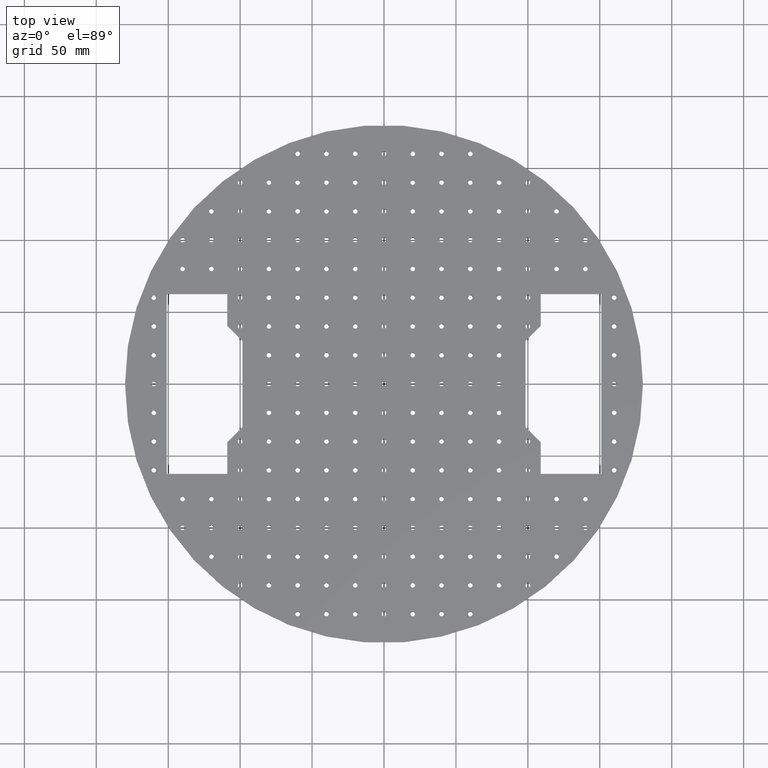
[diagram: clean part render]
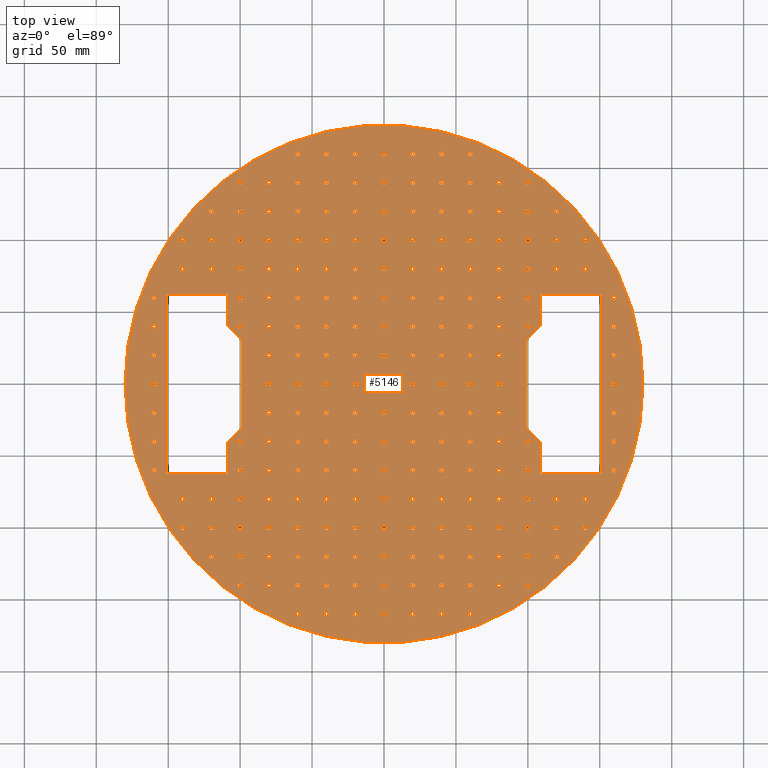
[diagram: same view with one face highlighted and labeled with its STEP entity id]
A machine part, top view. The second image highlights one B-rep face of the part: STEP entity #5146.
In plain terms, the highlighted planar face has unit normal (0, 0, 1).
Its self-contained STEP definition (entity closure, byte-faithful):
#432=FACE_BOUND('',#1718,.T.);
#433=FACE_BOUND('',#1719,.T.);
#434=FACE_BOUND('',#1720,.T.);
#435=FACE_BOUND('',#1721,.T.);
#436=FACE_BOUND('',#1722,.T.);
#437=FACE_BOUND('',#1723,.T.);
#438=FACE_BOUND('',#1724,.T.);
#439=FACE_BOUND('',#1725,.T.);
#440=FACE_BOUND('',#1726,.T.);
#441=FACE_BOUND('',#1727,.T.);
#442=FACE_BOUND('',#1728,.T.);
#443=FACE_BOUND('',#1729,.T.);
#444=FACE_BOUND('',#1730,.T.);
#445=FACE_BOUND('',#1731,.T.);
#446=FACE_BOUND('',#1732,.T.);
#447=FACE_BOUND('',#1733,.T.);
#448=FACE_BOUND('',#1734,.T.);
#449=FACE_BOUND('',#1735,.T.);
#450=FACE_BOUND('',#1736,.T.);
#451=FACE_BOUND('',#1737,.T.);
#452=FACE_BOUND('',#1738,.T.);
#453=FACE_BOUND('',#1739,.T.);
#454=FACE_BOUND('',#1740,.T.);
#455=FACE_BOUND('',#1741,.T.);
#456=FACE_BOUND('',#1742,.T.);
#457=FACE_BOUND('',#1743,.T.);
#458=FACE_BOUND('',#1744,.T.);
#459=FACE_BOUND('',#1745,.T.);
#460=FACE_BOUND('',#1746,.T.);
#461=FACE_BOUND('',#1747,.T.);
#462=FACE_BOUND('',#1748,.T.);
#463=FACE_BOUND('',#1749,.T.);
#464=FACE_BOUND('',#1750,.T.);
#465=FACE_BOUND('',#1751,.T.);
#466=FACE_BOUND('',#1752,.T.);
#467=FACE_BOUND('',#1753,.T.);
#468=FACE_BOUND('',#1754,.T.);
#469=FACE_BOUND('',#1755,.T.);
#470=FACE_BOUND('',#1756,.T.);
#471=FACE_BOUND('',#1757,.T.);
#472=FACE_BOUND('',#1758,.T.);
#473=FACE_BOUND('',#1759,.T.);
#474=FACE_BOUND('',#1760,.T.);
#475=FACE_BOUND('',#1761,.T.);
#476=FACE_BOUND('',#1762,.T.);
#477=FACE_BOUND('',#1763,.T.);
#478=FACE_BOUND('',#1764,.T.);
#479=FACE_BOUND('',#1765,.T.);
#480=FACE_BOUND('',#1766,.T.);
#481=FACE_BOUND('',#1767,.T.);
#482=FACE_BOUND('',#1768,.T.);
#483=FACE_BOUND('',#1769,.T.);
#484=FACE_BOUND('',#1770,.T.);
#485=FACE_BOUND('',#1771,.T.);
#486=FACE_BOUND('',#1772,.T.);
#487=FACE_BOUND('',#1773,.T.);
#488=FACE_BOUND('',#1774,.T.);
#489=FACE_BOUND('',#1775,.T.);
#490=FACE_BOUND('',#1776,.T.);
#491=FACE_BOUND('',#1777,.T.);
#492=FACE_BOUND('',#1778,.T.);
#493=FACE_BOUND('',#1779,.T.);
#494=FACE_BOUND('',#1780,.T.);
#495=FACE_BOUND('',#1781,.T.);
#496=FACE_BOUND('',#1782,.T.);
#497=FACE_BOUND('',#1783,.T.);
#498=FACE_BOUND('',#1784,.T.);
#499=FACE_BOUND('',#1785,.T.);
#500=FACE_BOUND('',#1786,.T.);
#501=FACE_BOUND('',#1787,.T.);
#502=FACE_BOUND('',#1788,.T.);
#503=FACE_BOUND('',#1789,.T.);
#504=FACE_BOUND('',#1790,.T.);
#505=FACE_BOUND('',#1791,.T.);
#506=FACE_BOUND('',#1792,.T.);
#507=FACE_BOUND('',#1793,.T.);
#508=FACE_BOUND('',#1794,.T.);
#509=FACE_BOUND('',#1795,.T.);
#510=FACE_BOUND('',#1796,.T.);
#511=FACE_BOUND('',#1797,.T.);
#512=FACE_BOUND('',#1798,.T.);
#513=FACE_BOUND('',#1799,.T.);
#514=FACE_BOUND('',#1800,.T.);
#515=FACE_BOUND('',#1801,.T.);
#516=FACE_BOUND('',#1802,.T.);
#517=FACE_BOUND('',#1803,.T.);
#518=FACE_BOUND('',#1804,.T.);
#519=FACE_BOUND('',#1805,.T.);
#520=FACE_BOUND('',#1806,.T.);
#521=FACE_BOUND('',#1807,.T.);
#522=FACE_BOUND('',#1808,.T.);
#523=FACE_BOUND('',#1809,.T.);
#524=FACE_BOUND('',#1810,.T.);
#525=FACE_BOUND('',#1811,.T.);
#526=FACE_BOUND('',#1812,.T.);
#527=FACE_BOUND('',#1813,.T.);
#528=FACE_BOUND('',#1814,.T.);
#529=FACE_BOUND('',#1815,.T.);
#530=FACE_BOUND('',#1816,.T.);
#531=FACE_BOUND('',#1817,.T.);
#532=FACE_BOUND('',#1818,.T.);
#533=FACE_BOUND('',#1819,.T.);
#534=FACE_BOUND('',#1820,.T.);
#535=FACE_BOUND('',#1821,.T.);
#536=FACE_BOUND('',#1822,.T.);
#537=FACE_BOUND('',#1823,.T.);
#538=FACE_BOUND('',#1824,.T.);
#539=FACE_BOUND('',#1825,.T.);
#540=FACE_BOUND('',#1826,.T.);
#541=FACE_BOUND('',#1827,.T.);
#542=FACE_BOUND('',#1828,.T.);
#543=FACE_BOUND('',#1829,.T.);
#544=FACE_BOUND('',#1830,.T.);
#545=FACE_BOUND('',#1831,.T.);
#546=FACE_BOUND('',#1832,.T.);
#547=FACE_BOUND('',#1833,.T.);
#548=FACE_BOUND('',#1834,.T.);
#549=FACE_BOUND('',#1835,.T.);
#550=FACE_BOUND('',#1836,.T.);
#551=FACE_BOUND('',#1837,.T.);
#552=FACE_BOUND('',#1838,.T.);
#553=FACE_BOUND('',#1839,.T.);
#554=FACE_BOUND('',#1840,.T.);
#555=FACE_BOUND('',#1841,.T.);
#556=FACE_BOUND('',#1842,.T.);
#557=FACE_BOUND('',#1843,.T.);
#558=FACE_BOUND('',#1844,.T.);
#559=FACE_BOUND('',#1845,.T.);
#560=FACE_BOUND('',#1846,.T.);
#561=FACE_BOUND('',#1847,.T.);
#562=FACE_BOUND('',#1848,.T.);
#563=FACE_BOUND('',#1849,.T.);
#564=FACE_BOUND('',#1850,.T.);
#565=FACE_BOUND('',#1851,.T.);
#566=FACE_BOUND('',#1852,.T.);
#567=FACE_BOUND('',#1853,.T.);
#568=FACE_BOUND('',#1854,.T.);
#569=FACE_BOUND('',#1855,.T.);
#570=FACE_BOUND('',#1856,.T.);
#571=FACE_BOUND('',#1857,.T.);
#572=FACE_BOUND('',#1858,.T.);
#573=FACE_BOUND('',#1859,.T.);
#574=FACE_BOUND('',#1860,.T.);
#575=FACE_BOUND('',#1861,.T.);
#576=FACE_BOUND('',#1862,.T.);
#577=FACE_BOUND('',#1863,.T.);
#578=FACE_BOUND('',#1864,.T.);
#579=FACE_BOUND('',#1865,.T.);
#580=FACE_BOUND('',#1866,.T.);
#581=FACE_BOUND('',#1867,.T.);
#582=FACE_BOUND('',#1868,.T.);
#583=FACE_BOUND('',#1869,.T.);
#584=FACE_BOUND('',#1870,.T.);
#585=FACE_BOUND('',#1871,.T.);
#586=FACE_BOUND('',#1872,.T.);
#587=FACE_BOUND('',#1873,.T.);
#588=FACE_BOUND('',#1874,.T.);
#589=FACE_BOUND('',#1875,.T.);
#590=FACE_BOUND('',#1876,.T.);
#591=FACE_BOUND('',#1877,.T.);
#592=FACE_BOUND('',#1878,.T.);
#593=FACE_BOUND('',#1879,.T.);
#594=FACE_BOUND('',#1880,.T.);
#595=FACE_BOUND('',#1881,.T.);
#596=FACE_BOUND('',#1882,.T.);
#597=FACE_BOUND('',#1883,.T.);
#598=FACE_BOUND('',#1884,.T.);
#599=FACE_BOUND('',#1885,.T.);
#600=FACE_BOUND('',#1886,.T.);
#601=FACE_BOUND('',#1887,.T.);
#602=FACE_BOUND('',#1888,.T.);
#603=FACE_BOUND('',#1889,.T.);
#604=FACE_BOUND('',#1890,.T.);
#605=FACE_BOUND('',#1891,.T.);
#606=FACE_BOUND('',#1892,.T.);
#607=FACE_BOUND('',#1893,.T.);
#608=FACE_BOUND('',#1894,.T.);
#609=FACE_BOUND('',#1895,.T.);
#610=FACE_BOUND('',#1896,.T.);
#611=FACE_BOUND('',#1897,.T.);
#612=FACE_BOUND('',#1898,.T.);
#613=FACE_BOUND('',#1899,.T.);
#614=FACE_BOUND('',#1900,.T.);
#615=FACE_BOUND('',#1901,.T.);
#616=FACE_BOUND('',#1902,.T.);
#617=FACE_BOUND('',#1903,.T.);
#618=FACE_BOUND('',#1904,.T.);
#619=FACE_BOUND('',#1905,.T.);
#620=FACE_BOUND('',#1906,.T.);
#621=FACE_BOUND('',#1907,.T.);
#622=FACE_BOUND('',#1908,.T.);
#623=FACE_BOUND('',#1909,.T.);
#624=FACE_BOUND('',#1910,.T.);
#625=FACE_BOUND('',#1911,.T.);
#626=FACE_BOUND('',#1912,.T.);
#627=FACE_BOUND('',#1913,.T.);
#628=FACE_BOUND('',#1914,.T.);
#629=FACE_BOUND('',#1915,.T.);
#630=FACE_BOUND('',#1916,.T.);
#631=FACE_BOUND('',#1917,.T.);
#632=FACE_BOUND('',#1918,.T.);
#633=FACE_BOUND('',#1919,.T.);
#634=FACE_BOUND('',#1920,.T.);
#635=FACE_BOUND('',#1921,.T.);
#636=FACE_BOUND('',#1922,.T.);
#637=FACE_BOUND('',#1923,.T.);
#638=FACE_BOUND('',#1924,.T.);
#639=FACE_BOUND('',#1925,.T.);
#640=FACE_BOUND('',#1926,.T.);
#849=CIRCLE('',#5387,1.6);
#850=CIRCLE('',#5389,1.6);
#851=CIRCLE('',#5391,1.6);
#852=CIRCLE('',#5393,1.6);
#853=CIRCLE('',#5395,1.6);
#854=CIRCLE('',#5397,1.6);
#855=CIRCLE('',#5399,1.6);
#856=CIRCLE('',#5401,1.6);
#857=CIRCLE('',#5403,1.6);
#858=CIRCLE('',#5405,1.6);
#859=CIRCLE('',#5407,1.6);
#860=CIRCLE('',#5409,1.6);
#861=CIRCLE('',#5411,1.6);
#862=CIRCLE('',#5413,1.6);
#863=CIRCLE('',#5415,1.6);
#864=CIRCLE('',#5417,1.6);
#865=CIRCLE('',#5419,1.6);
#866=CIRCLE('',#5421,1.6);
#867=CIRCLE('',#5423,1.6);
#868=CIRCLE('',#5425,1.6);
#869=CIRCLE('',#5427,1.6);
#870=CIRCLE('',#5429,1.6);
#871=CIRCLE('',#5431,1.6);
#872=CIRCLE('',#5433,1.6);
#873=CIRCLE('',#5435,1.6);
#874=CIRCLE('',#5437,1.6);
#875=CIRCLE('',#5439,1.6);
#876=CIRCLE('',#5441,1.6);
#877=CIRCLE('',#5443,1.6);
#878=CIRCLE('',#5445,1.6);
#879=CIRCLE('',#5447,1.6);
#880=CIRCLE('',#5449,1.6);
#881=CIRCLE('',#5451,1.6);
#882=CIRCLE('',#5453,1.6);
#883=CIRCLE('',#5455,1.6);
#884=CIRCLE('',#5457,1.6);
#885=CIRCLE('',#5459,1.6);
#886=CIRCLE('',#5461,1.6);
#887=CIRCLE('',#5463,1.6);
#888=CIRCLE('',#5465,1.6);
#889=CIRCLE('',#5467,1.6);
#890=CIRCLE('',#5469,1.6);
#891=CIRCLE('',#5471,1.6);
#892=CIRCLE('',#5473,1.6);
#893=CIRCLE('',#5475,1.6);
#894=CIRCLE('',#5477,1.6);
#895=CIRCLE('',#5479,1.6);
#896=CIRCLE('',#5481,1.6);
#897=CIRCLE('',#5483,1.6);
#898=CIRCLE('',#5485,1.6);
#899=CIRCLE('',#5487,1.6);
#900=CIRCLE('',#5489,1.6);
#901=CIRCLE('',#5491,1.6);
#902=CIRCLE('',#5493,1.6);
#903=CIRCLE('',#5495,1.6);
#904=CIRCLE('',#5497,1.6);
#905=CIRCLE('',#5499,1.6);
#906=CIRCLE('',#5501,1.6);
#907=CIRCLE('',#5503,1.6);
#908=CIRCLE('',#5505,1.6);
#909=CIRCLE('',#5507,1.6);
#910=CIRCLE('',#5509,1.6);
#911=CIRCLE('',#5511,1.6);
#912=CIRCLE('',#5513,1.6);
#913=CIRCLE('',#5515,1.6);
#914=CIRCLE('',#5517,1.6);
#915=CIRCLE('',#5519,1.6);
#916=CIRCLE('',#5521,1.6);
#917=CIRCLE('',#5523,1.6);
#918=CIRCLE('',#5525,1.6);
#919=CIRCLE('',#5527,1.6);
#920=CIRCLE('',#5529,1.6);
#921=CIRCLE('',#5531,1.6);
#922=CIRCLE('',#5533,1.6);
#923=CIRCLE('',#5535,1.6);
#924=CIRCLE('',#5537,1.6);
#925=CIRCLE('',#5539,1.6);
#926=CIRCLE('',#5541,1.6);
#927=CIRCLE('',#5543,1.6);
#928=CIRCLE('',#5545,1.6);
#929=CIRCLE('',#5547,1.6);
#930=CIRCLE('',#5549,1.6);
#931=CIRCLE('',#5551,1.6);
#932=CIRCLE('',#5553,1.6);
#933=CIRCLE('',#5555,1.6);
#934=CIRCLE('',#5557,1.6);
#935=CIRCLE('',#5559,1.6);
#936=CIRCLE('',#5561,1.6);
#937=CIRCLE('',#5563,1.6);
#938=CIRCLE('',#5565,1.6);
#939=CIRCLE('',#5567,1.6);
#940=CIRCLE('',#5569,1.6);
#941=CIRCLE('',#5571,1.6);
#942=CIRCLE('',#5573,1.6);
#943=CIRCLE('',#5575,1.6);
#944=CIRCLE('',#5577,1.6);
#945=CIRCLE('',#5579,1.6);
#946=CIRCLE('',#5581,1.6);
#947=CIRCLE('',#5583,1.6);
#948=CIRCLE('',#5585,1.6);
#949=CIRCLE('',#5587,1.6);
#950=CIRCLE('',#5589,1.6);
#951=CIRCLE('',#5591,1.6);
#952=CIRCLE('',#5593,1.6);
#953=CIRCLE('',#5595,1.6);
#954=CIRCLE('',#5597,1.6);
#955=CIRCLE('',#5599,1.6);
#956=CIRCLE('',#5601,1.6);
#957=CIRCLE('',#5603,1.6);
#958=CIRCLE('',#5605,1.6);
#959=CIRCLE('',#5607,1.6);
#960=CIRCLE('',#5609,1.6);
#961=CIRCLE('',#5611,1.6);
#962=CIRCLE('',#5613,1.6);
#963=CIRCLE('',#5615,1.6);
#964=CIRCLE('',#5617,1.6);
#965=CIRCLE('',#5619,1.6);
#966=CIRCLE('',#5621,1.6);
#967=CIRCLE('',#5623,1.6);
#968=CIRCLE('',#5625,1.6);
#969=CIRCLE('',#5627,1.6);
#970=CIRCLE('',#5629,1.6);
#971=CIRCLE('',#5631,1.6);
#972=CIRCLE('',#5633,1.6);
#973=CIRCLE('',#5635,1.6);
#974=CIRCLE('',#5637,1.6);
#975=CIRCLE('',#5639,1.6);
#976=CIRCLE('',#5641,1.6);
#977=CIRCLE('',#5643,1.6);
#978=CIRCLE('',#5645,1.6);
#979=CIRCLE('',#5647,1.6);
#980=CIRCLE('',#5649,1.6);
#981=CIRCLE('',#5651,1.6);
#982=CIRCLE('',#5653,1.6);
#983=CIRCLE('',#5655,1.6);
#984=CIRCLE('',#5657,1.6);
#985=CIRCLE('',#5659,1.6);
#986=CIRCLE('',#5661,1.6);
#987=CIRCLE('',#5663,1.6);
#988=CIRCLE('',#5665,1.6);
#989=CIRCLE('',#5667,1.6);
#990=CIRCLE('',#5669,1.6);
#991=CIRCLE('',#5671,1.6);
#992=CIRCLE('',#5673,1.6);
#993=CIRCLE('',#5675,1.6);
#994=CIRCLE('',#5677,1.6);
#995=CIRCLE('',#5679,1.6);
#996=CIRCLE('',#5681,1.6);
#997=CIRCLE('',#5683,1.6);
#998=CIRCLE('',#5685,1.6);
#999=CIRCLE('',#5687,1.6);
#1000=CIRCLE('',#5689,1.6);
#1001=CIRCLE('',#5691,1.6);
#1002=CIRCLE('',#5693,1.6);
#1003=CIRCLE('',#5695,1.6);
#1004=CIRCLE('',#5697,1.6);
#1005=CIRCLE('',#5699,1.6);
#1006=CIRCLE('',#5701,1.6);
#1007=CIRCLE('',#5703,1.6);
#1008=CIRCLE('',#5705,1.6);
#1009=CIRCLE('',#5707,1.6);
#1010=CIRCLE('',#5709,1.6);
#1011=CIRCLE('',#5711,1.6);
#1012=CIRCLE('',#5713,1.6);
#1013=CIRCLE('',#5715,1.6);
#1014=CIRCLE('',#5717,1.6);
#1015=CIRCLE('',#5719,1.6);
#1016=CIRCLE('',#5721,1.6);
#1017=CIRCLE('',#5723,1.6);
#1018=CIRCLE('',#5725,1.6);
#1019=CIRCLE('',#5727,1.6);
#1020=CIRCLE('',#5729,1.6);
#1021=CIRCLE('',#5731,1.6);
#1022=CIRCLE('',#5733,1.6);
#1023=CIRCLE('',#5735,1.6);
#1024=CIRCLE('',#5737,1.6);
#1025=CIRCLE('',#5739,1.6);
#1026=CIRCLE('',#5741,1.6);
#1027=CIRCLE('',#5743,1.6);
#1028=CIRCLE('',#5745,1.6);
#1029=CIRCLE('',#5747,1.6);
#1030=CIRCLE('',#5749,1.6);
#1031=CIRCLE('',#5751,1.6);
#1032=CIRCLE('',#5753,1.6);
#1033=CIRCLE('',#5755,1.6);
#1034=CIRCLE('',#5757,1.6);
#1035=CIRCLE('',#5759,1.6);
#1036=CIRCLE('',#5761,1.6);
#1037=CIRCLE('',#5763,1.6);
#1038=CIRCLE('',#5765,1.6);
#1039=CIRCLE('',#5767,1.6);
#1040=CIRCLE('',#5769,1.6);
#1041=CIRCLE('',#5771,1.6);
#1042=CIRCLE('',#5773,1.6);
#1043=CIRCLE('',#5775,1.6);
#1044=CIRCLE('',#5777,1.6);
#1045=CIRCLE('',#5779,1.6);
#1046=CIRCLE('',#5781,1.6);
#1047=CIRCLE('',#5783,1.6);
#1048=CIRCLE('',#5785,1.6);
#1049=CIRCLE('',#5787,1.6);
#1050=CIRCLE('',#5789,1.6);
#1051=CIRCLE('',#5791,1.6);
#1052=CIRCLE('',#5793,1.6);
#1053=CIRCLE('',#5795,1.6);
#1054=CIRCLE('',#5797,1.6);
#1055=CIRCLE('',#5799,1.6);
#1056=CIRCLE('',#5801,180.);
#1282=FACE_OUTER_BOUND('',#1717,.T.);
#1717=EDGE_LOOP('',(#4679));
#1718=EDGE_LOOP('',(#4680,#4681,#4682,#4683,#4684,#4685,#4686,#4687));
#1719=EDGE_LOOP('',(#4688,#4689,#4690,#4691,#4692,#4693,#4694,#4695));
#1720=EDGE_LOOP('',(#4696));
#1721=EDGE_LOOP('',(#4697));
#1722=EDGE_LOOP('',(#4698));
#1723=EDGE_LOOP('',(#4699));
#1724=EDGE_LOOP('',(#4700));
#1725=EDGE_LOOP('',(#4701));
#1726=EDGE_LOOP('',(#4702));
#1727=EDGE_LOOP('',(#4703));
#1728=EDGE_LOOP('',(#4704));
#1729=EDGE_LOOP('',(#4705));
#1730=EDGE_LOOP('',(#4706));
#1731=EDGE_LOOP('',(#4707));
#1732=EDGE_LOOP('',(#4708));
#1733=EDGE_LOOP('',(#4709));
#1734=EDGE_LOOP('',(#4710));
#1735=EDGE_LOOP('',(#4711));
#1736=EDGE_LOOP('',(#4712));
#1737=EDGE_LOOP('',(#4713));
#1738=EDGE_LOOP('',(#4714));
#1739=EDGE_LOOP('',(#4715));
#1740=EDGE_LOOP('',(#4716));
#1741=EDGE_LOOP('',(#4717));
#1742=EDGE_LOOP('',(#4718));
#1743=EDGE_LOOP('',(#4719));
#1744=EDGE_LOOP('',(#4720));
#1745=EDGE_LOOP('',(#4721));
#1746=EDGE_LOOP('',(#4722));
#1747=EDGE_LOOP('',(#4723));
#1748=EDGE_LOOP('',(#4724));
#1749=EDGE_LOOP('',(#4725));
#1750=EDGE_LOOP('',(#4726));
#1751=EDGE_LOOP('',(#4727));
#1752=EDGE_LOOP('',(#4728));
#1753=EDGE_LOOP('',(#4729));
#1754=EDGE_LOOP('',(#4730));
#1755=EDGE_LOOP('',(#4731));
#1756=EDGE_LOOP('',(#4732));
#1757=EDGE_LOOP('',(#4733));
#1758=EDGE_LOOP('',(#4734));
#1759=EDGE_LOOP('',(#4735));
#1760=EDGE_LOOP('',(#4736));
#1761=EDGE_LOOP('',(#4737));
#1762=EDGE_LOOP('',(#4738));
#1763=EDGE_LOOP('',(#4739));
#1764=EDGE_LOOP('',(#4740));
#1765=EDGE_LOOP('',(#4741));
#1766=EDGE_LOOP('',(#4742));
#1767=EDGE_LOOP('',(#4743));
#1768=EDGE_LOOP('',(#4744));
#1769=EDGE_LOOP('',(#4745));
#1770=EDGE_LOOP('',(#4746));
#1771=EDGE_LOOP('',(#4747));
#1772=EDGE_LOOP('',(#4748));
#1773=EDGE_LOOP('',(#4749));
#1774=EDGE_LOOP('',(#4750));
#1775=EDGE_LOOP('',(#4751));
#1776=EDGE_LOOP('',(#4752));
#1777=EDGE_LOOP('',(#4753));
#1778=EDGE_LOOP('',(#4754));
#1779=EDGE_LOOP('',(#4755));
#1780=EDGE_LOOP('',(#4756));
#1781=EDGE_LOOP('',(#4757));
#1782=EDGE_LOOP('',(#4758));
#1783=EDGE_LOOP('',(#4759));
#1784=EDGE_LOOP('',(#4760));
#1785=EDGE_LOOP('',(#4761));
#1786=EDGE_LOOP('',(#4762));
#1787=EDGE_LOOP('',(#4763));
#1788=EDGE_LOOP('',(#4764));
#1789=EDGE_LOOP('',(#4765));
#1790=EDGE_LOOP('',(#4766));
#1791=EDGE_LOOP('',(#4767));
#1792=EDGE_LOOP('',(#4768));
#1793=EDGE_LOOP('',(#4769));
#1794=EDGE_LOOP('',(#4770));
#1795=EDGE_LOOP('',(#4771));
#1796=EDGE_LOOP('',(#4772));
#1797=EDGE_LOOP('',(#4773));
#1798=EDGE_LOOP('',(#4774));
#1799=EDGE_LOOP('',(#4775));
#1800=EDGE_LOOP('',(#4776));
#1801=EDGE_LOOP('',(#4777));
#1802=EDGE_LOOP('',(#4778));
#1803=EDGE_LOOP('',(#4779));
#1804=EDGE_LOOP('',(#4780));
#1805=EDGE_LOOP('',(#4781));
#1806=EDGE_LOOP('',(#4782));
#1807=EDGE_LOOP('',(#4783));
#1808=EDGE_LOOP('',(#4784));
#1809=EDGE_LOOP('',(#4785));
#1810=EDGE_LOOP('',(#4786));
#1811=EDGE_LOOP('',(#4787));
#1812=EDGE_LOOP('',(#4788));
#1813=EDGE_LOOP('',(#4789));
#1814=EDGE_LOOP('',(#4790));
#1815=EDGE_LOOP('',(#4791));
#1816=EDGE_LOOP('',(#4792));
#1817=EDGE_LOOP('',(#4793));
#1818=EDGE_LOOP('',(#4794));
#1819=EDGE_LOOP('',(#4795));
#1820=EDGE_LOOP('',(#4796));
#1821=EDGE_LOOP('',(#4797));
#1822=EDGE_LOOP('',(#4798));
#1823=EDGE_LOOP('',(#4799));
#1824=EDGE_LOOP('',(#4800));
#1825=EDGE_LOOP('',(#4801));
#1826=EDGE_LOOP('',(#4802));
#1827=EDGE_LOOP('',(#4803));
#1828=EDGE_LOOP('',(#4804));
#1829=EDGE_LOOP('',(#4805));
#1830=EDGE_LOOP('',(#4806));
#1831=EDGE_LOOP('',(#4807));
#1832=EDGE_LOOP('',(#4808));
#1833=EDGE_LOOP('',(#4809));
#1834=EDGE_LOOP('',(#4810));
#1835=EDGE_LOOP('',(#4811));
#1836=EDGE_LOOP('',(#4812));
#1837=EDGE_LOOP('',(#4813));
#1838=EDGE_LOOP('',(#4814));
#1839=EDGE_LOOP('',(#4815));
#1840=EDGE_LOOP('',(#4816));
#1841=EDGE_LOOP('',(#4817));
#1842=EDGE_LOOP('',(#4818));
#1843=EDGE_LOOP('',(#4819));
#1844=EDGE_LOOP('',(#4820));
#1845=EDGE_LOOP('',(#4821));
#1846=EDGE_LOOP('',(#4822));
#1847=EDGE_LOOP('',(#4823));
#1848=EDGE_LOOP('',(#4824));
#1849=EDGE_LOOP('',(#4825));
#1850=EDGE_LOOP('',(#4826));
#1851=EDGE_LOOP('',(#4827));
#1852=EDGE_LOOP('',(#4828));
#1853=EDGE_LOOP('',(#4829));
#1854=EDGE_LOOP('',(#4830));
#1855=EDGE_LOOP('',(#4831));
#1856=EDGE_LOOP('',(#4832));
#1857=EDGE_LOOP('',(#4833));
#1858=EDGE_LOOP('',(#4834));
#1859=EDGE_LOOP('',(#4835));
#1860=EDGE_LOOP('',(#4836));
#1861=EDGE_LOOP('',(#4837));
#1862=EDGE_LOOP('',(#4838));
#1863=EDGE_LOOP('',(#4839));
#1864=EDGE_LOOP('',(#4840));
#1865=EDGE_LOOP('',(#4841));
#1866=EDGE_LOOP('',(#4842));
#1867=EDGE_LOOP('',(#4843));
#1868=EDGE_LOOP('',(#4844));
#1869=EDGE_LOOP('',(#4845));
#1870=EDGE_LOOP('',(#4846));
#1871=EDGE_LOOP('',(#4847));
#1872=EDGE_LOOP('',(#4848));
#1873=EDGE_LOOP('',(#4849));
#1874=EDGE_LOOP('',(#4850));
#1875=EDGE_LOOP('',(#4851));
#1876=EDGE_LOOP('',(#4852));
#1877=EDGE_LOOP('',(#4853));
#1878=EDGE_LOOP('',(#4854));
#1879=EDGE_LOOP('',(#4855));
#1880=EDGE_LOOP('',(#4856));
#1881=EDGE_LOOP('',(#4857));
#1882=EDGE_LOOP('',(#4858));
#1883=EDGE_LOOP('',(#4859));
#1884=EDGE_LOOP('',(#4860));
#1885=EDGE_LOOP('',(#4861));
#1886=EDGE_LOOP('',(#4862));
#1887=EDGE_LOOP('',(#4863));
#1888=EDGE_LOOP('',(#4864));
#1889=EDGE_LOOP('',(#4865));
#1890=EDGE_LOOP('',(#4866));
#1891=EDGE_LOOP('',(#4867));
#1892=EDGE_LOOP('',(#4868));
#1893=EDGE_LOOP('',(#4869));
#1894=EDGE_LOOP('',(#4870));
#1895=EDGE_LOOP('',(#4871));
#1896=EDGE_LOOP('',(#4872));
#1897=EDGE_LOOP('',(#4873));
#1898=EDGE_LOOP('',(#4874));
#1899=EDGE_LOOP('',(#4875));
#1900=EDGE_LOOP('',(#4876));
#1901=EDGE_LOOP('',(#4877));
#1902=EDGE_LOOP('',(#4878));
#1903=EDGE_LOOP('',(#4879));
#1904=EDGE_LOOP('',(#4880));
#1905=EDGE_LOOP('',(#4881));
#1906=EDGE_LOOP('',(#4882));
#1907=EDGE_LOOP('',(#4883));
#1908=EDGE_LOOP('',(#4884));
#1909=EDGE_LOOP('',(#4885));
#1910=EDGE_LOOP('',(#4886));
#1911=EDGE_LOOP('',(#4887));
#1912=EDGE_LOOP('',(#4888));
#1913=EDGE_LOOP('',(#4889));
#1914=EDGE_LOOP('',(#4890));
#1915=EDGE_LOOP('',(#4891));
#1916=EDGE_LOOP('',(#4892));
#1917=EDGE_LOOP('',(#4893));
#1918=EDGE_LOOP('',(#4894));
#1919=EDGE_LOOP('',(#4895));
#1920=EDGE_LOOP('',(#4896));
#1921=EDGE_LOOP('',(#4897));
#1922=EDGE_LOOP('',(#4898));
#1923=EDGE_LOOP('',(#4899));
#1924=EDGE_LOOP('',(#4900));
#1925=EDGE_LOOP('',(#4901));
#1926=EDGE_LOOP('',(#4902));
#1927=LINE('',#7349,#2183);
#1933=LINE('',#7360,#2189);
#1949=LINE('',#7809,#2205);
#1952=LINE('',#7815,#2208);
#1954=LINE('',#7820,#2210);
#1958=LINE('',#7826,#2214);
#1959=LINE('',#7828,#2215);
#1960=LINE('',#7831,#2216);
#1962=LINE('',#7835,#2218);
#1965=LINE('',#7840,#2221);
#1966=LINE('',#7842,#2222);
#1968=LINE('',#7847,#2224);
#1970=LINE('',#7851,#2226);
#1972=LINE('',#7854,#2228);
#1973=LINE('',#7856,#2229);
#1974=LINE('',#7858,#2230);
#2183=VECTOR('',#5807,10.);
#2189=VECTOR('',#5815,10.);
#2205=VECTOR('',#6251,10.);
#2208=VECTOR('',#6256,10.);
#2210=VECTOR('',#6260,10.);
#2214=VECTOR('',#6266,10.);
#2215=VECTOR('',#6269,10.);
#2216=VECTOR('',#6272,10.);
#2218=VECTOR('',#6276,10.);
#2221=VECTOR('',#6281,10.);
#2222=VECTOR('',#6284,10.);
#2224=VECTOR('',#6288,10.);
#2226=VECTOR('',#6292,10.);
#2228=VECTOR('',#6296,10.);
#2229=VECTOR('',#6299,10.);
#2230=VECTOR('',#6302,10.);
#2439=VERTEX_POINT('',#7347);
#2440=VERTEX_POINT('',#7348);
#2444=VERTEX_POINT('',#7358);
#2666=VERTEX_POINT('',#7806);
#2667=VERTEX_POINT('',#7808);
#2668=VERTEX_POINT('',#7812);
#2669=VERTEX_POINT('',#7814);
#2670=VERTEX_POINT('',#7818);
#2671=VERTEX_POINT('',#7819);
#2672=VERTEX_POINT('',#7824);
#2673=VERTEX_POINT('',#7830);
#2674=VERTEX_POINT('',#7834);
#2675=VERTEX_POINT('',#7838);
#2676=VERTEX_POINT('',#7844);
#2677=VERTEX_POINT('',#7846);
#2678=VERTEX_POINT('',#7850);
#2679=VERTEX_POINT('',#7860);
#2680=VERTEX_POINT('',#7864);
#2681=VERTEX_POINT('',#7868);
#2682=VERTEX_POINT('',#7872);
#2683=VERTEX_POINT('',#7876);
#2684=VERTEX_POINT('',#7880);
#2685=VERTEX_POINT('',#7884);
#2686=VERTEX_POINT('',#7888);
#2687=VERTEX_POINT('',#7892);
#2688=VERTEX_POINT('',#7896);
#2689=VERTEX_POINT('',#7900);
#2690=VERTEX_POINT('',#7904);
#2691=VERTEX_POINT('',#7908);
#2692=VERTEX_POINT('',#7912);
#2693=VERTEX_POINT('',#7916);
#2694=VERTEX_POINT('',#7920);
#2695=VERTEX_POINT('',#7924);
#2696=VERTEX_POINT('',#7928);
#2697=VERTEX_POINT('',#7932);
#2698=VERTEX_POINT('',#7936);
#2699=VERTEX_POINT('',#7940);
#2700=VERTEX_POINT('',#7944);
#2701=VERTEX_POINT('',#7948);
#2702=VERTEX_POINT('',#7952);
#2703=VERTEX_POINT('',#7956);
#2704=VERTEX_POINT('',#7960);
#2705=VERTEX_POINT('',#7964);
#2706=VERTEX_POINT('',#7968);
#2707=VERTEX_POINT('',#7972);
#2708=VERTEX_POINT('',#7976);
#2709=VERTEX_POINT('',#7980);
#2710=VERTEX_POINT('',#7984);
#2711=VERTEX_POINT('',#7988);
#2712=VERTEX_POINT('',#7992);
#2713=VERTEX_POINT('',#7996);
#2714=VERTEX_POINT('',#8000);
#2715=VERTEX_POINT('',#8004);
#2716=VERTEX_POINT('',#8008);
#2717=VERTEX_POINT('',#8012);
#2718=VERTEX_POINT('',#8016);
#2719=VERTEX_POINT('',#8020);
#2720=VERTEX_POINT('',#8024);
#2721=VERTEX_POINT('',#8028);
#2722=VERTEX_POINT('',#8032);
#2723=VERTEX_POINT('',#8036);
#2724=VERTEX_POINT('',#8040);
#2725=VERTEX_POINT('',#8044);
#2726=VERTEX_POINT('',#8048);
#2727=VERTEX_POINT('',#8052);
#2728=VERTEX_POINT('',#8056);
#2729=VERTEX_POINT('',#8060);
#2730=VERTEX_POINT('',#8064);
#2731=VERTEX_POINT('',#8068);
#2732=VERTEX_POINT('',#8072);
#2733=VERTEX_POINT('',#8076);
#2734=VERTEX_POINT('',#8080);
#2735=VERTEX_POINT('',#8084);
#2736=VERTEX_POINT('',#8088);
#2737=VERTEX_POINT('',#8092);
#2738=VERTEX_POINT('',#8096);
#2739=VERTEX_POINT('',#8100);
#2740=VERTEX_POINT('',#8104);
#2741=VERTEX_POINT('',#8108);
#2742=VERTEX_POINT('',#8112);
#2743=VERTEX_POINT('',#8116);
#2744=VERTEX_POINT('',#8120);
#2745=VERTEX_POINT('',#8124);
#2746=VERTEX_POINT('',#8128);
#2747=VERTEX_POINT('',#8132);
#2748=VERTEX_POINT('',#8136);
#2749=VERTEX_POINT('',#8140);
#2750=VERTEX_POINT('',#8144);
#2751=VERTEX_POINT('',#8148);
#2752=VERTEX_POINT('',#8152);
#2753=VERTEX_POINT('',#8156);
#2754=VERTEX_POINT('',#8160);
#2755=VERTEX_POINT('',#8164);
#2756=VERTEX_POINT('',#8168);
#2757=VERTEX_POINT('',#8172);
#2758=VERTEX_POINT('',#8176);
#2759=VERTEX_POINT('',#8180);
#2760=VERTEX_POINT('',#8184);
#2761=VERTEX_POINT('',#8188);
#2762=VERTEX_POINT('',#8192);
#2763=VERTEX_POINT('',#8196);
#2764=VERTEX_POINT('',#8200);
#2765=VERTEX_POINT('',#8204);
#2766=VERTEX_POINT('',#8208);
#2767=VERTEX_POINT('',#8212);
#2768=VERTEX_POINT('',#8216);
#2769=VERTEX_POINT('',#8220);
#2770=VERTEX_POINT('',#8224);
#2771=VERTEX_POINT('',#8228);
#2772=VERTEX_POINT('',#8232);
#2773=VERTEX_POINT('',#8236);
#2774=VERTEX_POINT('',#8240);
#2775=VERTEX_POINT('',#8244);
#2776=VERTEX_POINT('',#8248);
#2777=VERTEX_POINT('',#8252);
#2778=VERTEX_POINT('',#8256);
#2779=VERTEX_POINT('',#8260);
#2780=VERTEX_POINT('',#8264);
#2781=VERTEX_POINT('',#8268);
#2782=VERTEX_POINT('',#8272);
#2783=VERTEX_POINT('',#8276);
#2784=VERTEX_POINT('',#8280);
#2785=VERTEX_POINT('',#8284);
#2786=VERTEX_POINT('',#8288);
#2787=VERTEX_POINT('',#8292);
#2788=VERTEX_POINT('',#8296);
#2789=VERTEX_POINT('',#8300);
#2790=VERTEX_POINT('',#8304);
#2791=VERTEX_POINT('',#8308);
#2792=VERTEX_POINT('',#8312);
#2793=VERTEX_POINT('',#8316);
#2794=VERTEX_POINT('',#8320);
#2795=VERTEX_POINT('',#8324);
#2796=VERTEX_POINT('',#8328);
#2797=VERTEX_POINT('',#8332);
#2798=VERTEX_POINT('',#8336);
#2799=VERTEX_POINT('',#8340);
#2800=VERTEX_POINT('',#8344);
#2801=VERTEX_POINT('',#8348);
#2802=VERTEX_POINT('',#8352);
#2803=VERTEX_POINT('',#8356);
#2804=VERTEX_POINT('',#8360);
#2805=VERTEX_POINT('',#8364);
#2806=VERTEX_POINT('',#8368);
#2807=VERTEX_POINT('',#8372);
#2808=VERTEX_POINT('',#8376);
#2809=VERTEX_POINT('',#8380);
#2810=VERTEX_POINT('',#8384);
#2811=VERTEX_POINT('',#8388);
#2812=VERTEX_POINT('',#8392);
#2813=VERTEX_POINT('',#8396);
#2814=VERTEX_POINT('',#8400);
#2815=VERTEX_POINT('',#8404);
#2816=VERTEX_POINT('',#8408);
#2817=VERTEX_POINT('',#8412);
#2818=VERTEX_POINT('',#8416);
#2819=VERTEX_POINT('',#8420);
#2820=VERTEX_POINT('',#8424);
#2821=VERTEX_POINT('',#8428);
#2822=VERTEX_POINT('',#8432);
#2823=VERTEX_POINT('',#8436);
#2824=VERTEX_POINT('',#8440);
#2825=VERTEX_POINT('',#8444);
#2826=VERTEX_POINT('',#8448);
#2827=VERTEX_POINT('',#8452);
#2828=VERTEX_POINT('',#8456);
#2829=VERTEX_POINT('',#8460);
#2830=VERTEX_POINT('',#8464);
#2831=VERTEX_POINT('',#8468);
#2832=VERTEX_POINT('',#8472);
#2833=VERTEX_POINT('',#8476);
#2834=VERTEX_POINT('',#8480);
#2835=VERTEX_POINT('',#8484);
#2836=VERTEX_POINT('',#8488);
#2837=VERTEX_POINT('',#8492);
#2838=VERTEX_POINT('',#8496);
#2839=VERTEX_POINT('',#8500);
#2840=VERTEX_POINT('',#8504);
#2841=VERTEX_POINT('',#8508);
#2842=VERTEX_POINT('',#8512);
#2843=VERTEX_POINT('',#8516);
#2844=VERTEX_POINT('',#8520);
#2845=VERTEX_POINT('',#8524);
#2846=VERTEX_POINT('',#8528);
#2847=VERTEX_POINT('',#8532);
#2848=VERTEX_POINT('',#8536);
#2849=VERTEX_POINT('',#8540);
#2850=VERTEX_POINT('',#8544);
#2851=VERTEX_POINT('',#8548);
#2852=VERTEX_POINT('',#8552);
#2853=VERTEX_POINT('',#8556);
#2854=VERTEX_POINT('',#8560);
#2855=VERTEX_POINT('',#8564);
#2856=VERTEX_POINT('',#8568);
#2857=VERTEX_POINT('',#8572);
#2858=VERTEX_POINT('',#8576);
#2859=VERTEX_POINT('',#8580);
#2860=VERTEX_POINT('',#8584);
#2861=VERTEX_POINT('',#8588);
#2862=VERTEX_POINT('',#8592);
#2863=VERTEX_POINT('',#8596);
#2864=VERTEX_POINT('',#8600);
#2865=VERTEX_POINT('',#8604);
#2866=VERTEX_POINT('',#8608);
#2867=VERTEX_POINT('',#8612);
#2868=VERTEX_POINT('',#8616);
#2869=VERTEX_POINT('',#8620);
#2870=VERTEX_POINT('',#8624);
#2871=VERTEX_POINT('',#8628);
#2872=VERTEX_POINT('',#8632);
#2873=VERTEX_POINT('',#8636);
#2874=VERTEX_POINT('',#8640);
#2875=VERTEX_POINT('',#8644);
#2876=VERTEX_POINT('',#8648);
#2877=VERTEX_POINT('',#8652);
#2878=VERTEX_POINT('',#8656);
#2879=VERTEX_POINT('',#8660);
#2880=VERTEX_POINT('',#8664);
#2881=VERTEX_POINT('',#8668);
#2882=VERTEX_POINT('',#8672);
#2883=VERTEX_POINT('',#8676);
#2884=VERTEX_POINT('',#8680);
#2885=VERTEX_POINT('',#8684);
#2886=VERTEX_POINT('',#8688);
#2887=EDGE_CURVE('',#2439,#2440,#1927,.T.);
#2893=EDGE_CURVE('',#2439,#2444,#1933,.T.);
#3117=EDGE_CURVE('',#2666,#2667,#1949,.T.);
#3120=EDGE_CURVE('',#2668,#2669,#1952,.T.);
#3122=EDGE_CURVE('',#2670,#2671,#1954,.T.);
#3126=EDGE_CURVE('',#2670,#2672,#1958,.T.);
#3127=EDGE_CURVE('',#2666,#2440,#1959,.T.);
#3128=EDGE_CURVE('',#2673,#2667,#1960,.T.);
#3130=EDGE_CURVE('',#2674,#2673,#1962,.T.);
#3133=EDGE_CURVE('',#2444,#2675,#1965,.T.);
#3134=EDGE_CURVE('',#2675,#2674,#1966,.T.);
#3136=EDGE_CURVE('',#2677,#2676,#1968,.T.);
#3138=EDGE_CURVE('',#2678,#2677,#1970,.T.);
#3140=EDGE_CURVE('',#2672,#2678,#1972,.T.);
#3141=EDGE_CURVE('',#2668,#2671,#1973,.T.);
#3142=EDGE_CURVE('',#2676,#2669,#1974,.T.);
#3143=EDGE_CURVE('',#2679,#2679,#849,.T.);
#3145=EDGE_CURVE('',#2680,#2680,#850,.T.);
#3147=EDGE_CURVE('',#2681,#2681,#851,.T.);
#3149=EDGE_CURVE('',#2682,#2682,#852,.T.);
#3151=EDGE_CURVE('',#2683,#2683,#853,.T.);
#3153=EDGE_CURVE('',#2684,#2684,#854,.T.);
#3155=EDGE_CURVE('',#2685,#2685,#855,.T.);
#3157=EDGE_CURVE('',#2686,#2686,#856,.T.);
#3159=EDGE_CURVE('',#2687,#2687,#857,.T.);
#3161=EDGE_CURVE('',#2688,#2688,#858,.T.);
#3163=EDGE_CURVE('',#2689,#2689,#859,.T.);
#3165=EDGE_CURVE('',#2690,#2690,#860,.T.);
#3167=EDGE_CURVE('',#2691,#2691,#861,.T.);
#3169=EDGE_CURVE('',#2692,#2692,#862,.T.);
#3171=EDGE_CURVE('',#2693,#2693,#863,.T.);
#3173=EDGE_CURVE('',#2694,#2694,#864,.T.);
#3175=EDGE_CURVE('',#2695,#2695,#865,.T.);
#3177=EDGE_CURVE('',#2696,#2696,#866,.T.);
#3179=EDGE_CURVE('',#2697,#2697,#867,.T.);
#3181=EDGE_CURVE('',#2698,#2698,#868,.T.);
#3183=EDGE_CURVE('',#2699,#2699,#869,.T.);
#3185=EDGE_CURVE('',#2700,#2700,#870,.T.);
#3187=EDGE_CURVE('',#2701,#2701,#871,.T.);
#3189=EDGE_CURVE('',#2702,#2702,#872,.T.);
#3191=EDGE_CURVE('',#2703,#2703,#873,.T.);
#3193=EDGE_CURVE('',#2704,#2704,#874,.T.);
#3195=EDGE_CURVE('',#2705,#2705,#875,.T.);
#3197=EDGE_CURVE('',#2706,#2706,#876,.T.);
#3199=EDGE_CURVE('',#2707,#2707,#877,.T.);
#3201=EDGE_CURVE('',#2708,#2708,#878,.T.);
#3203=EDGE_CURVE('',#2709,#2709,#879,.T.);
#3205=EDGE_CURVE('',#2710,#2710,#880,.T.);
#3207=EDGE_CURVE('',#2711,#2711,#881,.T.);
#3209=EDGE_CURVE('',#2712,#2712,#882,.T.);
#3211=EDGE_CURVE('',#2713,#2713,#883,.T.);
#3213=EDGE_CURVE('',#2714,#2714,#884,.T.);
#3215=EDGE_CURVE('',#2715,#2715,#885,.T.);
#3217=EDGE_CURVE('',#2716,#2716,#886,.T.);
#3219=EDGE_CURVE('',#2717,#2717,#887,.T.);
#3221=EDGE_CURVE('',#2718,#2718,#888,.T.);
#3223=EDGE_CURVE('',#2719,#2719,#889,.T.);
#3225=EDGE_CURVE('',#2720,#2720,#890,.T.);
#3227=EDGE_CURVE('',#2721,#2721,#891,.T.);
#3229=EDGE_CURVE('',#2722,#2722,#892,.T.);
#3231=EDGE_CURVE('',#2723,#2723,#893,.T.);
#3233=EDGE_CURVE('',#2724,#2724,#894,.T.);
#3235=EDGE_CURVE('',#2725,#2725,#895,.T.);
#3237=EDGE_CURVE('',#2726,#2726,#896,.T.);
#3239=EDGE_CURVE('',#2727,#2727,#897,.T.);
#3241=EDGE_CURVE('',#2728,#2728,#898,.T.);
#3243=EDGE_CURVE('',#2729,#2729,#899,.T.);
#3245=EDGE_CURVE('',#2730,#2730,#900,.T.);
#3247=EDGE_CURVE('',#2731,#2731,#901,.T.);
#3249=EDGE_CURVE('',#2732,#2732,#902,.T.);
#3251=EDGE_CURVE('',#2733,#2733,#903,.T.);
#3253=EDGE_CURVE('',#2734,#2734,#904,.T.);
#3255=EDGE_CURVE('',#2735,#2735,#905,.T.);
#3257=EDGE_CURVE('',#2736,#2736,#906,.T.);
#3259=EDGE_CURVE('',#2737,#2737,#907,.T.);
#3261=EDGE_CURVE('',#2738,#2738,#908,.T.);
#3263=EDGE_CURVE('',#2739,#2739,#909,.T.);
#3265=EDGE_CURVE('',#2740,#2740,#910,.T.);
#3267=EDGE_CURVE('',#2741,#2741,#911,.T.);
#3269=EDGE_CURVE('',#2742,#2742,#912,.T.);
#3271=EDGE_CURVE('',#2743,#2743,#913,.T.);
#3273=EDGE_CURVE('',#2744,#2744,#914,.T.);
#3275=EDGE_CURVE('',#2745,#2745,#915,.T.);
#3277=EDGE_CURVE('',#2746,#2746,#916,.T.);
#3279=EDGE_CURVE('',#2747,#2747,#917,.T.);
#3281=EDGE_CURVE('',#2748,#2748,#918,.T.);
#3283=EDGE_CURVE('',#2749,#2749,#919,.T.);
#3285=EDGE_CURVE('',#2750,#2750,#920,.T.);
#3287=EDGE_CURVE('',#2751,#2751,#921,.T.);
#3289=EDGE_CURVE('',#2752,#2752,#922,.T.);
#3291=EDGE_CURVE('',#2753,#2753,#923,.T.);
#3293=EDGE_CURVE('',#2754,#2754,#924,.T.);
#3295=EDGE_CURVE('',#2755,#2755,#925,.T.);
#3297=EDGE_CURVE('',#2756,#2756,#926,.T.);
#3299=EDGE_CURVE('',#2757,#2757,#927,.T.);
#3301=EDGE_CURVE('',#2758,#2758,#928,.T.);
#3303=EDGE_CURVE('',#2759,#2759,#929,.T.);
#3305=EDGE_CURVE('',#2760,#2760,#930,.T.);
#3307=EDGE_CURVE('',#2761,#2761,#931,.T.);
#3309=EDGE_CURVE('',#2762,#2762,#932,.T.);
#3311=EDGE_CURVE('',#2763,#2763,#933,.T.);
#3313=EDGE_CURVE('',#2764,#2764,#934,.T.);
#3315=EDGE_CURVE('',#2765,#2765,#935,.T.);
#3317=EDGE_CURVE('',#2766,#2766,#936,.T.);
#3319=EDGE_CURVE('',#2767,#2767,#937,.T.);
#3321=EDGE_CURVE('',#2768,#2768,#938,.T.);
#3323=EDGE_CURVE('',#2769,#2769,#939,.T.);
#3325=EDGE_CURVE('',#2770,#2770,#940,.T.);
#3327=EDGE_CURVE('',#2771,#2771,#941,.T.);
#3329=EDGE_CURVE('',#2772,#2772,#942,.T.);
#3331=EDGE_CURVE('',#2773,#2773,#943,.T.);
#3333=EDGE_CURVE('',#2774,#2774,#944,.T.);
#3335=EDGE_CURVE('',#2775,#2775,#945,.T.);
#3337=EDGE_CURVE('',#2776,#2776,#946,.T.);
#3339=EDGE_CURVE('',#2777,#2777,#947,.T.);
#3341=EDGE_CURVE('',#2778,#2778,#948,.T.);
#3343=EDGE_CURVE('',#2779,#2779,#949,.T.);
#3345=EDGE_CURVE('',#2780,#2780,#950,.T.);
#3347=EDGE_CURVE('',#2781,#2781,#951,.T.);
#3349=EDGE_CURVE('',#2782,#2782,#952,.T.);
#3351=EDGE_CURVE('',#2783,#2783,#953,.T.);
#3353=EDGE_CURVE('',#2784,#2784,#954,.T.);
#3355=EDGE_CURVE('',#2785,#2785,#955,.T.);
#3357=EDGE_CURVE('',#2786,#2786,#956,.T.);
#3359=EDGE_CURVE('',#2787,#2787,#957,.T.);
#3361=EDGE_CURVE('',#2788,#2788,#958,.T.);
#3363=EDGE_CURVE('',#2789,#2789,#959,.T.);
#3365=EDGE_CURVE('',#2790,#2790,#960,.T.);
#3367=EDGE_CURVE('',#2791,#2791,#961,.T.);
#3369=EDGE_CURVE('',#2792,#2792,#962,.T.);
#3371=EDGE_CURVE('',#2793,#2793,#963,.T.);
#3373=EDGE_CURVE('',#2794,#2794,#964,.T.);
#3375=EDGE_CURVE('',#2795,#2795,#965,.T.);
#3377=EDGE_CURVE('',#2796,#2796,#966,.T.);
#3379=EDGE_CURVE('',#2797,#2797,#967,.T.);
#3381=EDGE_CURVE('',#2798,#2798,#968,.T.);
#3383=EDGE_CURVE('',#2799,#2799,#969,.T.);
#3385=EDGE_CURVE('',#2800,#2800,#970,.T.);
#3387=EDGE_CURVE('',#2801,#2801,#971,.T.);
#3389=EDGE_CURVE('',#2802,#2802,#972,.T.);
#3391=EDGE_CURVE('',#2803,#2803,#973,.T.);
#3393=EDGE_CURVE('',#2804,#2804,#974,.T.);
#3395=EDGE_CURVE('',#2805,#2805,#975,.T.);
#3397=EDGE_CURVE('',#2806,#2806,#976,.T.);
#3399=EDGE_CURVE('',#2807,#2807,#977,.T.);
#3401=EDGE_CURVE('',#2808,#2808,#978,.T.);
#3403=EDGE_CURVE('',#2809,#2809,#979,.T.);
#3405=EDGE_CURVE('',#2810,#2810,#980,.T.);
#3407=EDGE_CURVE('',#2811,#2811,#981,.T.);
#3409=EDGE_CURVE('',#2812,#2812,#982,.T.);
#3411=EDGE_CURVE('',#2813,#2813,#983,.T.);
#3413=EDGE_CURVE('',#2814,#2814,#984,.T.);
#3415=EDGE_CURVE('',#2815,#2815,#985,.T.);
#3417=EDGE_CURVE('',#2816,#2816,#986,.T.);
#3419=EDGE_CURVE('',#2817,#2817,#987,.T.);
#3421=EDGE_CURVE('',#2818,#2818,#988,.T.);
#3423=EDGE_CURVE('',#2819,#2819,#989,.T.);
#3425=EDGE_CURVE('',#2820,#2820,#990,.T.);
#3427=EDGE_CURVE('',#2821,#2821,#991,.T.);
#3429=EDGE_CURVE('',#2822,#2822,#992,.T.);
#3431=EDGE_CURVE('',#2823,#2823,#993,.T.);
#3433=EDGE_CURVE('',#2824,#2824,#994,.T.);
#3435=EDGE_CURVE('',#2825,#2825,#995,.T.);
#3437=EDGE_CURVE('',#2826,#2826,#996,.T.);
#3439=EDGE_CURVE('',#2827,#2827,#997,.T.);
#3441=EDGE_CURVE('',#2828,#2828,#998,.T.);
#3443=EDGE_CURVE('',#2829,#2829,#999,.T.);
#3445=EDGE_CURVE('',#2830,#2830,#1000,.T.);
#3447=EDGE_CURVE('',#2831,#2831,#1001,.T.);
#3449=EDGE_CURVE('',#2832,#2832,#1002,.T.);
#3451=EDGE_CURVE('',#2833,#2833,#1003,.T.);
#3453=EDGE_CURVE('',#2834,#2834,#1004,.T.);
#3455=EDGE_CURVE('',#2835,#2835,#1005,.T.);
#3457=EDGE_CURVE('',#2836,#2836,#1006,.T.);
#3459=EDGE_CURVE('',#2837,#2837,#1007,.T.);
#3461=EDGE_CURVE('',#2838,#2838,#1008,.T.);
#3463=EDGE_CURVE('',#2839,#2839,#1009,.T.);
#3465=EDGE_CURVE('',#2840,#2840,#1010,.T.);
#3467=EDGE_CURVE('',#2841,#2841,#1011,.T.);
#3469=EDGE_CURVE('',#2842,#2842,#1012,.T.);
#3471=EDGE_CURVE('',#2843,#2843,#1013,.T.);
#3473=EDGE_CURVE('',#2844,#2844,#1014,.T.);
#3475=EDGE_CURVE('',#2845,#2845,#1015,.T.);
#3477=EDGE_CURVE('',#2846,#2846,#1016,.T.);
#3479=EDGE_CURVE('',#2847,#2847,#1017,.T.);
#3481=EDGE_CURVE('',#2848,#2848,#1018,.T.);
#3483=EDGE_CURVE('',#2849,#2849,#1019,.T.);
#3485=EDGE_CURVE('',#2850,#2850,#1020,.T.);
#3487=EDGE_CURVE('',#2851,#2851,#1021,.T.);
#3489=EDGE_CURVE('',#2852,#2852,#1022,.T.);
#3491=EDGE_CURVE('',#2853,#2853,#1023,.T.);
#3493=EDGE_CURVE('',#2854,#2854,#1024,.T.);
#3495=EDGE_CURVE('',#2855,#2855,#1025,.T.);
#3497=EDGE_CURVE('',#2856,#2856,#1026,.T.);
#3499=EDGE_CURVE('',#2857,#2857,#1027,.T.);
#3501=EDGE_CURVE('',#2858,#2858,#1028,.T.);
#3503=EDGE_CURVE('',#2859,#2859,#1029,.T.);
#3505=EDGE_CURVE('',#2860,#2860,#1030,.T.);
#3507=EDGE_CURVE('',#2861,#2861,#1031,.T.);
#3509=EDGE_CURVE('',#2862,#2862,#1032,.T.);
#3511=EDGE_CURVE('',#2863,#2863,#1033,.T.);
#3513=EDGE_CURVE('',#2864,#2864,#1034,.T.);
#3515=EDGE_CURVE('',#2865,#2865,#1035,.T.);
#3517=EDGE_CURVE('',#2866,#2866,#1036,.T.);
#3519=EDGE_CURVE('',#2867,#2867,#1037,.T.);
#3521=EDGE_CURVE('',#2868,#2868,#1038,.T.);
#3523=EDGE_CURVE('',#2869,#2869,#1039,.T.);
#3525=EDGE_CURVE('',#2870,#2870,#1040,.T.);
#3527=EDGE_CURVE('',#2871,#2871,#1041,.T.);
#3529=EDGE_CURVE('',#2872,#2872,#1042,.T.);
#3531=EDGE_CURVE('',#2873,#2873,#1043,.T.);
#3533=EDGE_CURVE('',#2874,#2874,#1044,.T.);
#3535=EDGE_CURVE('',#2875,#2875,#1045,.T.);
#3537=EDGE_CURVE('',#2876,#2876,#1046,.T.);
#3539=EDGE_CURVE('',#2877,#2877,#1047,.T.);
#3541=EDGE_CURVE('',#2878,#2878,#1048,.T.);
#3543=EDGE_CURVE('',#2879,#2879,#1049,.T.);
#3545=EDGE_CURVE('',#2880,#2880,#1050,.T.);
#3547=EDGE_CURVE('',#2881,#2881,#1051,.T.);
#3549=EDGE_CURVE('',#2882,#2882,#1052,.T.);
#3551=EDGE_CURVE('',#2883,#2883,#1053,.T.);
#3553=EDGE_CURVE('',#2884,#2884,#1054,.T.);
#3555=EDGE_CURVE('',#2885,#2885,#1055,.T.);
#3557=EDGE_CURVE('',#2886,#2886,#1056,.T.);
#4679=ORIENTED_EDGE('',*,*,#3557,.T.);
#4680=ORIENTED_EDGE('',*,*,#2887,.F.);
#4681=ORIENTED_EDGE('',*,*,#2893,.T.);
#4682=ORIENTED_EDGE('',*,*,#3133,.T.);
#4683=ORIENTED_EDGE('',*,*,#3134,.T.);
#4684=ORIENTED_EDGE('',*,*,#3130,.T.);
#4685=ORIENTED_EDGE('',*,*,#3128,.T.);
#4686=ORIENTED_EDGE('',*,*,#3117,.F.);
#4687=ORIENTED_EDGE('',*,*,#3127,.T.);
#4688=ORIENTED_EDGE('',*,*,#3120,.F.);
#4689=ORIENTED_EDGE('',*,*,#3141,.T.);
#4690=ORIENTED_EDGE('',*,*,#3122,.F.);
#4691=ORIENTED_EDGE('',*,*,#3126,.T.);
#4692=ORIENTED_EDGE('',*,*,#3140,.T.);
#4693=ORIENTED_EDGE('',*,*,#3138,.T.);
#4694=ORIENTED_EDGE('',*,*,#3136,.T.);
#4695=ORIENTED_EDGE('',*,*,#3142,.T.);
#4696=ORIENTED_EDGE('',*,*,#3555,.T.);
#4697=ORIENTED_EDGE('',*,*,#3553,.T.);
#4698=ORIENTED_EDGE('',*,*,#3551,.T.);
#4699=ORIENTED_EDGE('',*,*,#3549,.T.);
#4700=ORIENTED_EDGE('',*,*,#3547,.T.);
#4701=ORIENTED_EDGE('',*,*,#3545,.T.);
#4702=ORIENTED_EDGE('',*,*,#3543,.T.);
#4703=ORIENTED_EDGE('',*,*,#3541,.T.);
#4704=ORIENTED_EDGE('',*,*,#3539,.T.);
#4705=ORIENTED_EDGE('',*,*,#3537,.T.);
#4706=ORIENTED_EDGE('',*,*,#3535,.T.);
#4707=ORIENTED_EDGE('',*,*,#3533,.T.);
#4708=ORIENTED_EDGE('',*,*,#3531,.T.);
#4709=ORIENTED_EDGE('',*,*,#3529,.T.);
#4710=ORIENTED_EDGE('',*,*,#3527,.T.);
#4711=ORIENTED_EDGE('',*,*,#3525,.T.);
#4712=ORIENTED_EDGE('',*,*,#3523,.T.);
#4713=ORIENTED_EDGE('',*,*,#3521,.T.);
#4714=ORIENTED_EDGE('',*,*,#3519,.T.);
#4715=ORIENTED_EDGE('',*,*,#3517,.T.);
#4716=ORIENTED_EDGE('',*,*,#3515,.T.);
#4717=ORIENTED_EDGE('',*,*,#3513,.T.);
#4718=ORIENTED_EDGE('',*,*,#3511,.T.);
#4719=ORIENTED_EDGE('',*,*,#3509,.T.);
#4720=ORIENTED_EDGE('',*,*,#3507,.T.);
#4721=ORIENTED_EDGE('',*,*,#3505,.T.);
#4722=ORIENTED_EDGE('',*,*,#3503,.T.);
#4723=ORIENTED_EDGE('',*,*,#3501,.T.);
#4724=ORIENTED_EDGE('',*,*,#3499,.T.);
#4725=ORIENTED_EDGE('',*,*,#3497,.T.);
#4726=ORIENTED_EDGE('',*,*,#3495,.T.);
#4727=ORIENTED_EDGE('',*,*,#3493,.T.);
#4728=ORIENTED_EDGE('',*,*,#3491,.T.);
#4729=ORIENTED_EDGE('',*,*,#3489,.T.);
#4730=ORIENTED_EDGE('',*,*,#3487,.T.);
#4731=ORIENTED_EDGE('',*,*,#3485,.T.);
#4732=ORIENTED_EDGE('',*,*,#3483,.T.);
#4733=ORIENTED_EDGE('',*,*,#3481,.T.);
#4734=ORIENTED_EDGE('',*,*,#3479,.T.);
#4735=ORIENTED_EDGE('',*,*,#3477,.T.);
#4736=ORIENTED_EDGE('',*,*,#3475,.T.);
#4737=ORIENTED_EDGE('',*,*,#3473,.T.);
#4738=ORIENTED_EDGE('',*,*,#3471,.T.);
#4739=ORIENTED_EDGE('',*,*,#3469,.T.);
#4740=ORIENTED_EDGE('',*,*,#3467,.T.);
#4741=ORIENTED_EDGE('',*,*,#3465,.T.);
#4742=ORIENTED_EDGE('',*,*,#3463,.T.);
#4743=ORIENTED_EDGE('',*,*,#3461,.T.);
#4744=ORIENTED_EDGE('',*,*,#3459,.T.);
#4745=ORIENTED_EDGE('',*,*,#3457,.T.);
#4746=ORIENTED_EDGE('',*,*,#3455,.T.);
#4747=ORIENTED_EDGE('',*,*,#3453,.T.);
#4748=ORIENTED_EDGE('',*,*,#3451,.T.);
#4749=ORIENTED_EDGE('',*,*,#3449,.T.);
#4750=ORIENTED_EDGE('',*,*,#3447,.T.);
#4751=ORIENTED_EDGE('',*,*,#3445,.T.);
#4752=ORIENTED_EDGE('',*,*,#3443,.T.);
#4753=ORIENTED_EDGE('',*,*,#3441,.T.);
#4754=ORIENTED_EDGE('',*,*,#3439,.T.);
#4755=ORIENTED_EDGE('',*,*,#3437,.T.);
#4756=ORIENTED_EDGE('',*,*,#3435,.T.);
#4757=ORIENTED_EDGE('',*,*,#3433,.T.);
#4758=ORIENTED_EDGE('',*,*,#3431,.T.);
#4759=ORIENTED_EDGE('',*,*,#3429,.T.);
#4760=ORIENTED_EDGE('',*,*,#3427,.T.);
#4761=ORIENTED_EDGE('',*,*,#3425,.T.);
#4762=ORIENTED_EDGE('',*,*,#3423,.T.);
#4763=ORIENTED_EDGE('',*,*,#3421,.T.);
#4764=ORIENTED_EDGE('',*,*,#3419,.T.);
#4765=ORIENTED_EDGE('',*,*,#3417,.T.);
#4766=ORIENTED_EDGE('',*,*,#3415,.T.);
#4767=ORIENTED_EDGE('',*,*,#3413,.T.);
#4768=ORIENTED_EDGE('',*,*,#3411,.T.);
#4769=ORIENTED_EDGE('',*,*,#3409,.T.);
#4770=ORIENTED_EDGE('',*,*,#3407,.T.);
#4771=ORIENTED_EDGE('',*,*,#3405,.T.);
#4772=ORIENTED_EDGE('',*,*,#3403,.T.);
#4773=ORIENTED_EDGE('',*,*,#3401,.T.);
#4774=ORIENTED_EDGE('',*,*,#3399,.T.);
#4775=ORIENTED_EDGE('',*,*,#3397,.T.);
#4776=ORIENTED_EDGE('',*,*,#3395,.T.);
#4777=ORIENTED_EDGE('',*,*,#3393,.T.);
#4778=ORIENTED_EDGE('',*,*,#3391,.T.);
#4779=ORIENTED_EDGE('',*,*,#3389,.T.);
#4780=ORIENTED_EDGE('',*,*,#3387,.T.);
#4781=ORIENTED_EDGE('',*,*,#3385,.T.);
#4782=ORIENTED_EDGE('',*,*,#3383,.T.);
#4783=ORIENTED_EDGE('',*,*,#3381,.T.);
#4784=ORIENTED_EDGE('',*,*,#3379,.T.);
#4785=ORIENTED_EDGE('',*,*,#3377,.T.);
#4786=ORIENTED_EDGE('',*,*,#3375,.T.);
#4787=ORIENTED_EDGE('',*,*,#3373,.T.);
#4788=ORIENTED_EDGE('',*,*,#3371,.T.);
#4789=ORIENTED_EDGE('',*,*,#3369,.T.);
#4790=ORIENTED_EDGE('',*,*,#3367,.T.);
#4791=ORIENTED_EDGE('',*,*,#3365,.T.);
#4792=ORIENTED_EDGE('',*,*,#3363,.T.);
#4793=ORIENTED_EDGE('',*,*,#3361,.T.);
#4794=ORIENTED_EDGE('',*,*,#3359,.T.);
#4795=ORIENTED_EDGE('',*,*,#3357,.T.);
#4796=ORIENTED_EDGE('',*,*,#3355,.T.);
#4797=ORIENTED_EDGE('',*,*,#3353,.T.);
#4798=ORIENTED_EDGE('',*,*,#3351,.T.);
#4799=ORIENTED_EDGE('',*,*,#3349,.T.);
#4800=ORIENTED_EDGE('',*,*,#3347,.T.);
#4801=ORIENTED_EDGE('',*,*,#3345,.T.);
#4802=ORIENTED_EDGE('',*,*,#3343,.T.);
#4803=ORIENTED_EDGE('',*,*,#3341,.T.);
#4804=ORIENTED_EDGE('',*,*,#3339,.T.);
#4805=ORIENTED_EDGE('',*,*,#3337,.T.);
#4806=ORIENTED_EDGE('',*,*,#3335,.T.);
#4807=ORIENTED_EDGE('',*,*,#3333,.T.);
#4808=ORIENTED_EDGE('',*,*,#3331,.T.);
#4809=ORIENTED_EDGE('',*,*,#3329,.T.);
#4810=ORIENTED_EDGE('',*,*,#3327,.T.);
#4811=ORIENTED_EDGE('',*,*,#3325,.T.);
#4812=ORIENTED_EDGE('',*,*,#3323,.T.);
#4813=ORIENTED_EDGE('',*,*,#3321,.T.);
#4814=ORIENTED_EDGE('',*,*,#3319,.T.);
#4815=ORIENTED_EDGE('',*,*,#3317,.T.);
#4816=ORIENTED_EDGE('',*,*,#3315,.T.);
#4817=ORIENTED_EDGE('',*,*,#3313,.T.);
#4818=ORIENTED_EDGE('',*,*,#3311,.T.);
#4819=ORIENTED_EDGE('',*,*,#3309,.T.);
#4820=ORIENTED_EDGE('',*,*,#3307,.T.);
#4821=ORIENTED_EDGE('',*,*,#3305,.T.);
#4822=ORIENTED_EDGE('',*,*,#3303,.T.);
#4823=ORIENTED_EDGE('',*,*,#3301,.T.);
#4824=ORIENTED_EDGE('',*,*,#3299,.T.);
#4825=ORIENTED_EDGE('',*,*,#3297,.T.);
#4826=ORIENTED_EDGE('',*,*,#3295,.T.);
#4827=ORIENTED_EDGE('',*,*,#3293,.T.);
#4828=ORIENTED_EDGE('',*,*,#3291,.T.);
#4829=ORIENTED_EDGE('',*,*,#3289,.T.);
#4830=ORIENTED_EDGE('',*,*,#3287,.T.);
#4831=ORIENTED_EDGE('',*,*,#3285,.T.);
#4832=ORIENTED_EDGE('',*,*,#3283,.T.);
#4833=ORIENTED_EDGE('',*,*,#3281,.T.);
#4834=ORIENTED_EDGE('',*,*,#3279,.T.);
#4835=ORIENTED_EDGE('',*,*,#3277,.T.);
#4836=ORIENTED_EDGE('',*,*,#3275,.T.);
#4837=ORIENTED_EDGE('',*,*,#3273,.T.);
#4838=ORIENTED_EDGE('',*,*,#3271,.T.);
#4839=ORIENTED_EDGE('',*,*,#3269,.T.);
#4840=ORIENTED_EDGE('',*,*,#3267,.T.);
#4841=ORIENTED_EDGE('',*,*,#3265,.T.);
#4842=ORIENTED_EDGE('',*,*,#3263,.T.);
#4843=ORIENTED_EDGE('',*,*,#3261,.T.);
#4844=ORIENTED_EDGE('',*,*,#3259,.T.);
#4845=ORIENTED_EDGE('',*,*,#3257,.T.);
#4846=ORIENTED_EDGE('',*,*,#3255,.T.);
#4847=ORIENTED_EDGE('',*,*,#3253,.T.);
#4848=ORIENTED_EDGE('',*,*,#3251,.T.);
#4849=ORIENTED_EDGE('',*,*,#3249,.T.);
#4850=ORIENTED_EDGE('',*,*,#3247,.T.);
#4851=ORIENTED_EDGE('',*,*,#3245,.T.);
#4852=ORIENTED_EDGE('',*,*,#3243,.T.);
#4853=ORIENTED_EDGE('',*,*,#3241,.T.);
#4854=ORIENTED_EDGE('',*,*,#3239,.T.);
#4855=ORIENTED_EDGE('',*,*,#3237,.T.);
#4856=ORIENTED_EDGE('',*,*,#3235,.T.);
#4857=ORIENTED_EDGE('',*,*,#3233,.T.);
#4858=ORIENTED_EDGE('',*,*,#3231,.T.);
#4859=ORIENTED_EDGE('',*,*,#3229,.T.);
#4860=ORIENTED_EDGE('',*,*,#3227,.T.);
#4861=ORIENTED_EDGE('',*,*,#3225,.T.);
#4862=ORIENTED_EDGE('',*,*,#3223,.T.);
#4863=ORIENTED_EDGE('',*,*,#3221,.T.);
#4864=ORIENTED_EDGE('',*,*,#3219,.T.);
#4865=ORIENTED_EDGE('',*,*,#3217,.T.);
#4866=ORIENTED_EDGE('',*,*,#3215,.T.);
#4867=ORIENTED_EDGE('',*,*,#3213,.T.);
#4868=ORIENTED_EDGE('',*,*,#3211,.T.);
#4869=ORIENTED_EDGE('',*,*,#3209,.T.);
#4870=ORIENTED_EDGE('',*,*,#3207,.T.);
#4871=ORIENTED_EDGE('',*,*,#3205,.T.);
#4872=ORIENTED_EDGE('',*,*,#3203,.T.);
#4873=ORIENTED_EDGE('',*,*,#3201,.T.);
#4874=ORIENTED_EDGE('',*,*,#3199,.T.);
#4875=ORIENTED_EDGE('',*,*,#3197,.T.);
#4876=ORIENTED_EDGE('',*,*,#3195,.T.);
#4877=ORIENTED_EDGE('',*,*,#3193,.T.);
#4878=ORIENTED_EDGE('',*,*,#3191,.T.);
#4879=ORIENTED_EDGE('',*,*,#3189,.T.);
#4880=ORIENTED_EDGE('',*,*,#3187,.T.);
#4881=ORIENTED_EDGE('',*,*,#3185,.T.);
#4882=ORIENTED_EDGE('',*,*,#3183,.T.);
#4883=ORIENTED_EDGE('',*,*,#3181,.T.);
#4884=ORIENTED_EDGE('',*,*,#3179,.T.);
#4885=ORIENTED_EDGE('',*,*,#3177,.T.);
#4886=ORIENTED_EDGE('',*,*,#3175,.T.);
#4887=ORIENTED_EDGE('',*,*,#3173,.T.);
#4888=ORIENTED_EDGE('',*,*,#3171,.T.);
#4889=ORIENTED_EDGE('',*,*,#3169,.T.);
#4890=ORIENTED_EDGE('',*,*,#3167,.T.);
#4891=ORIENTED_EDGE('',*,*,#3165,.T.);
#4892=ORIENTED_EDGE('',*,*,#3163,.T.);
#4893=ORIENTED_EDGE('',*,*,#3161,.T.);
#4894=ORIENTED_EDGE('',*,*,#3159,.T.);
#4895=ORIENTED_EDGE('',*,*,#3157,.T.);
#4896=ORIENTED_EDGE('',*,*,#3155,.T.);
#4897=ORIENTED_EDGE('',*,*,#3153,.T.);
#4898=ORIENTED_EDGE('',*,*,#3151,.T.);
#4899=ORIENTED_EDGE('',*,*,#3149,.T.);
#4900=ORIENTED_EDGE('',*,*,#3147,.T.);
#4901=ORIENTED_EDGE('',*,*,#3145,.T.);
#4902=ORIENTED_EDGE('',*,*,#3143,.T.);
#4920=PLANE('',#5802);
#5146=ADVANCED_FACE('',(#1282,#432,#433,#434,#435,#436,#437,#438,#439,#440,
#441,#442,#443,#444,#445,#446,#447,#448,#449,#450,#451,#452,#453,#454,#455,
#456,#457,#458,#459,#460,#461,#462,#463,#464,#465,#466,#467,#468,#469,#470,
#471,#472,#473,#474,#475,#476,#477,#478,#479,#480,#481,#482,#483,#484,#485,
#486,#487,#488,#489,#490,#491,#492,#493,#494,#495,#496,#497,#498,#499,#500,
#501,#502,#503,#504,#505,#506,#507,#508,#509,#510,#511,#512,#513,#514,#515,
#516,#517,#518,#519,#520,#521,#522,#523,#524,#525,#526,#527,#528,#529,#530,
#531,#532,#533,#534,#535,#536,#537,#538,#539,#540,#541,#542,#543,#544,#545,
#546,#547,#548,#549,#550,#551,#552,#553,#554,#555,#556,#557,#558,#559,#560,
#561,#562,#563,#564,#565,#566,#567,#568,#569,#570,#571,#572,#573,#574,#575,
#576,#577,#578,#579,#580,#581,#582,#583,#584,#585,#586,#587,#588,#589,#590,
#591,#592,#593,#594,#595,#596,#597,#598,#599,#600,#601,#602,#603,#604,#605,
#606,#607,#608,#609,#610,#611,#612,#613,#614,#615,#616,#617,#618,#619,#620,
#621,#622,#623,#624,#625,#626,#627,#628,#629,#630,#631,#632,#633,#634,#635,
#636,#637,#638,#639,#640),#4920,.T.);
#5387=AXIS2_PLACEMENT_3D('',#7861,#6305,#6306);
#5389=AXIS2_PLACEMENT_3D('',#7865,#6310,#6311);
#5391=AXIS2_PLACEMENT_3D('',#7869,#6315,#6316);
#5393=AXIS2_PLACEMENT_3D('',#7873,#6320,#6321);
#5395=AXIS2_PLACEMENT_3D('',#7877,#6325,#6326);
#5397=AXIS2_PLACEMENT_3D('',#7881,#6330,#6331);
#5399=AXIS2_PLACEMENT_3D('',#7885,#6335,#6336);
#5401=AXIS2_PLACEMENT_3D('',#7889,#6340,#6341);
#5403=AXIS2_PLACEMENT_3D('',#7893,#6345,#6346);
#5405=AXIS2_PLACEMENT_3D('',#7897,#6350,#6351);
#5407=AXIS2_PLACEMENT_3D('',#7901,#6355,#6356);
#5409=AXIS2_PLACEMENT_3D('',#7905,#6360,#6361);
#5411=AXIS2_PLACEMENT_3D('',#7909,#6365,#6366);
#5413=AXIS2_PLACEMENT_3D('',#7913,#6370,#6371);
#5415=AXIS2_PLACEMENT_3D('',#7917,#6375,#6376);
#5417=AXIS2_PLACEMENT_3D('',#7921,#6380,#6381);
#5419=AXIS2_PLACEMENT_3D('',#7925,#6385,#6386);
#5421=AXIS2_PLACEMENT_3D('',#7929,#6390,#6391);
#5423=AXIS2_PLACEMENT_3D('',#7933,#6395,#6396);
#5425=AXIS2_PLACEMENT_3D('',#7937,#6400,#6401);
#5427=AXIS2_PLACEMENT_3D('',#7941,#6405,#6406);
#5429=AXIS2_PLACEMENT_3D('',#7945,#6410,#6411);
#5431=AXIS2_PLACEMENT_3D('',#7949,#6415,#6416);
#5433=AXIS2_PLACEMENT_3D('',#7953,#6420,#6421);
#5435=AXIS2_PLACEMENT_3D('',#7957,#6425,#6426);
#5437=AXIS2_PLACEMENT_3D('',#7961,#6430,#6431);
#5439=AXIS2_PLACEMENT_3D('',#7965,#6435,#6436);
#5441=AXIS2_PLACEMENT_3D('',#7969,#6440,#6441);
#5443=AXIS2_PLACEMENT_3D('',#7973,#6445,#6446);
#5445=AXIS2_PLACEMENT_3D('',#7977,#6450,#6451);
#5447=AXIS2_PLACEMENT_3D('',#7981,#6455,#6456);
#5449=AXIS2_PLACEMENT_3D('',#7985,#6460,#6461);
#5451=AXIS2_PLACEMENT_3D('',#7989,#6465,#6466);
#5453=AXIS2_PLACEMENT_3D('',#7993,#6470,#6471);
#5455=AXIS2_PLACEMENT_3D('',#7997,#6475,#6476);
#5457=AXIS2_PLACEMENT_3D('',#8001,#6480,#6481);
#5459=AXIS2_PLACEMENT_3D('',#8005,#6485,#6486);
#5461=AXIS2_PLACEMENT_3D('',#8009,#6490,#6491);
#5463=AXIS2_PLACEMENT_3D('',#8013,#6495,#6496);
#5465=AXIS2_PLACEMENT_3D('',#8017,#6500,#6501);
#5467=AXIS2_PLACEMENT_3D('',#8021,#6505,#6506);
#5469=AXIS2_PLACEMENT_3D('',#8025,#6510,#6511);
#5471=AXIS2_PLACEMENT_3D('',#8029,#6515,#6516);
#5473=AXIS2_PLACEMENT_3D('',#8033,#6520,#6521);
#5475=AXIS2_PLACEMENT_3D('',#8037,#6525,#6526);
#5477=AXIS2_PLACEMENT_3D('',#8041,#6530,#6531);
#5479=AXIS2_PLACEMENT_3D('',#8045,#6535,#6536);
#5481=AXIS2_PLACEMENT_3D('',#8049,#6540,#6541);
#5483=AXIS2_PLACEMENT_3D('',#8053,#6545,#6546);
#5485=AXIS2_PLACEMENT_3D('',#8057,#6550,#6551);
#5487=AXIS2_PLACEMENT_3D('',#8061,#6555,#6556);
#5489=AXIS2_PLACEMENT_3D('',#8065,#6560,#6561);
#5491=AXIS2_PLACEMENT_3D('',#8069,#6565,#6566);
#5493=AXIS2_PLACEMENT_3D('',#8073,#6570,#6571);
#5495=AXIS2_PLACEMENT_3D('',#8077,#6575,#6576);
#5497=AXIS2_PLACEMENT_3D('',#8081,#6580,#6581);
#5499=AXIS2_PLACEMENT_3D('',#8085,#6585,#6586);
#5501=AXIS2_PLACEMENT_3D('',#8089,#6590,#6591);
#5503=AXIS2_PLACEMENT_3D('',#8093,#6595,#6596);
#5505=AXIS2_PLACEMENT_3D('',#8097,#6600,#6601);
#5507=AXIS2_PLACEMENT_3D('',#8101,#6605,#6606);
#5509=AXIS2_PLACEMENT_3D('',#8105,#6610,#6611);
#5511=AXIS2_PLACEMENT_3D('',#8109,#6615,#6616);
#5513=AXIS2_PLACEMENT_3D('',#8113,#6620,#6621);
#5515=AXIS2_PLACEMENT_3D('',#8117,#6625,#6626);
#5517=AXIS2_PLACEMENT_3D('',#8121,#6630,#6631);
#5519=AXIS2_PLACEMENT_3D('',#8125,#6635,#6636);
#5521=AXIS2_PLACEMENT_3D('',#8129,#6640,#6641);
#5523=AXIS2_PLACEMENT_3D('',#8133,#6645,#6646);
#5525=AXIS2_PLACEMENT_3D('',#8137,#6650,#6651);
#5527=AXIS2_PLACEMENT_3D('',#8141,#6655,#6656);
#5529=AXIS2_PLACEMENT_3D('',#8145,#6660,#6661);
#5531=AXIS2_PLACEMENT_3D('',#8149,#6665,#6666);
#5533=AXIS2_PLACEMENT_3D('',#8153,#6670,#6671);
#5535=AXIS2_PLACEMENT_3D('',#8157,#6675,#6676);
#5537=AXIS2_PLACEMENT_3D('',#8161,#6680,#6681);
#5539=AXIS2_PLACEMENT_3D('',#8165,#6685,#6686);
#5541=AXIS2_PLACEMENT_3D('',#8169,#6690,#6691);
#5543=AXIS2_PLACEMENT_3D('',#8173,#6695,#6696);
#5545=AXIS2_PLACEMENT_3D('',#8177,#6700,#6701);
#5547=AXIS2_PLACEMENT_3D('',#8181,#6705,#6706);
#5549=AXIS2_PLACEMENT_3D('',#8185,#6710,#6711);
#5551=AXIS2_PLACEMENT_3D('',#8189,#6715,#6716);
#5553=AXIS2_PLACEMENT_3D('',#8193,#6720,#6721);
#5555=AXIS2_PLACEMENT_3D('',#8197,#6725,#6726);
#5557=AXIS2_PLACEMENT_3D('',#8201,#6730,#6731);
#5559=AXIS2_PLACEMENT_3D('',#8205,#6735,#6736);
#5561=AXIS2_PLACEMENT_3D('',#8209,#6740,#6741);
#5563=AXIS2_PLACEMENT_3D('',#8213,#6745,#6746);
#5565=AXIS2_PLACEMENT_3D('',#8217,#6750,#6751);
#5567=AXIS2_PLACEMENT_3D('',#8221,#6755,#6756);
#5569=AXIS2_PLACEMENT_3D('',#8225,#6760,#6761);
#5571=AXIS2_PLACEMENT_3D('',#8229,#6765,#6766);
#5573=AXIS2_PLACEMENT_3D('',#8233,#6770,#6771);
#5575=AXIS2_PLACEMENT_3D('',#8237,#6775,#6776);
#5577=AXIS2_PLACEMENT_3D('',#8241,#6780,#6781);
#5579=AXIS2_PLACEMENT_3D('',#8245,#6785,#6786);
#5581=AXIS2_PLACEMENT_3D('',#8249,#6790,#6791);
#5583=AXIS2_PLACEMENT_3D('',#8253,#6795,#6796);
#5585=AXIS2_PLACEMENT_3D('',#8257,#6800,#6801);
#5587=AXIS2_PLACEMENT_3D('',#8261,#6805,#6806);
#5589=AXIS2_PLACEMENT_3D('',#8265,#6810,#6811);
#5591=AXIS2_PLACEMENT_3D('',#8269,#6815,#6816);
#5593=AXIS2_PLACEMENT_3D('',#8273,#6820,#6821);
#5595=AXIS2_PLACEMENT_3D('',#8277,#6825,#6826);
#5597=AXIS2_PLACEMENT_3D('',#8281,#6830,#6831);
#5599=AXIS2_PLACEMENT_3D('',#8285,#6835,#6836);
#5601=AXIS2_PLACEMENT_3D('',#8289,#6840,#6841);
#5603=AXIS2_PLACEMENT_3D('',#8293,#6845,#6846);
#5605=AXIS2_PLACEMENT_3D('',#8297,#6850,#6851);
#5607=AXIS2_PLACEMENT_3D('',#8301,#6855,#6856);
#5609=AXIS2_PLACEMENT_3D('',#8305,#6860,#6861);
#5611=AXIS2_PLACEMENT_3D('',#8309,#6865,#6866);
#5613=AXIS2_PLACEMENT_3D('',#8313,#6870,#6871);
#5615=AXIS2_PLACEMENT_3D('',#8317,#6875,#6876);
#5617=AXIS2_PLACEMENT_3D('',#8321,#6880,#6881);
#5619=AXIS2_PLACEMENT_3D('',#8325,#6885,#6886);
#5621=AXIS2_PLACEMENT_3D('',#8329,#6890,#6891);
#5623=AXIS2_PLACEMENT_3D('',#8333,#6895,#6896);
#5625=AXIS2_PLACEMENT_3D('',#8337,#6900,#6901);
#5627=AXIS2_PLACEMENT_3D('',#8341,#6905,#6906);
#5629=AXIS2_PLACEMENT_3D('',#8345,#6910,#6911);
#5631=AXIS2_PLACEMENT_3D('',#8349,#6915,#6916);
#5633=AXIS2_PLACEMENT_3D('',#8353,#6920,#6921);
#5635=AXIS2_PLACEMENT_3D('',#8357,#6925,#6926);
#5637=AXIS2_PLACEMENT_3D('',#8361,#6930,#6931);
#5639=AXIS2_PLACEMENT_3D('',#8365,#6935,#6936);
#5641=AXIS2_PLACEMENT_3D('',#8369,#6940,#6941);
#5643=AXIS2_PLACEMENT_3D('',#8373,#6945,#6946);
#5645=AXIS2_PLACEMENT_3D('',#8377,#6950,#6951);
#5647=AXIS2_PLACEMENT_3D('',#8381,#6955,#6956);
#5649=AXIS2_PLACEMENT_3D('',#8385,#6960,#6961);
#5651=AXIS2_PLACEMENT_3D('',#8389,#6965,#6966);
#5653=AXIS2_PLACEMENT_3D('',#8393,#6970,#6971);
#5655=AXIS2_PLACEMENT_3D('',#8397,#6975,#6976);
#5657=AXIS2_PLACEMENT_3D('',#8401,#6980,#6981);
#5659=AXIS2_PLACEMENT_3D('',#8405,#6985,#6986);
#5661=AXIS2_PLACEMENT_3D('',#8409,#6990,#6991);
#5663=AXIS2_PLACEMENT_3D('',#8413,#6995,#6996);
#5665=AXIS2_PLACEMENT_3D('',#8417,#7000,#7001);
#5667=AXIS2_PLACEMENT_3D('',#8421,#7005,#7006);
#5669=AXIS2_PLACEMENT_3D('',#8425,#7010,#7011);
#5671=AXIS2_PLACEMENT_3D('',#8429,#7015,#7016);
#5673=AXIS2_PLACEMENT_3D('',#8433,#7020,#7021);
#5675=AXIS2_PLACEMENT_3D('',#8437,#7025,#7026);
#5677=AXIS2_PLACEMENT_3D('',#8441,#7030,#7031);
#5679=AXIS2_PLACEMENT_3D('',#8445,#7035,#7036);
#5681=AXIS2_PLACEMENT_3D('',#8449,#7040,#7041);
#5683=AXIS2_PLACEMENT_3D('',#8453,#7045,#7046);
#5685=AXIS2_PLACEMENT_3D('',#8457,#7050,#7051);
#5687=AXIS2_PLACEMENT_3D('',#8461,#7055,#7056);
#5689=AXIS2_PLACEMENT_3D('',#8465,#7060,#7061);
#5691=AXIS2_PLACEMENT_3D('',#8469,#7065,#7066);
#5693=AXIS2_PLACEMENT_3D('',#8473,#7070,#7071);
#5695=AXIS2_PLACEMENT_3D('',#8477,#7075,#7076);
#5697=AXIS2_PLACEMENT_3D('',#8481,#7080,#7081);
#5699=AXIS2_PLACEMENT_3D('',#8485,#7085,#7086);
#5701=AXIS2_PLACEMENT_3D('',#8489,#7090,#7091);
#5703=AXIS2_PLACEMENT_3D('',#8493,#7095,#7096);
#5705=AXIS2_PLACEMENT_3D('',#8497,#7100,#7101);
#5707=AXIS2_PLACEMENT_3D('',#8501,#7105,#7106);
#5709=AXIS2_PLACEMENT_3D('',#8505,#7110,#7111);
#5711=AXIS2_PLACEMENT_3D('',#8509,#7115,#7116);
#5713=AXIS2_PLACEMENT_3D('',#8513,#7120,#7121);
#5715=AXIS2_PLACEMENT_3D('',#8517,#7125,#7126);
#5717=AXIS2_PLACEMENT_3D('',#8521,#7130,#7131);
#5719=AXIS2_PLACEMENT_3D('',#8525,#7135,#7136);
#5721=AXIS2_PLACEMENT_3D('',#8529,#7140,#7141);
#5723=AXIS2_PLACEMENT_3D('',#8533,#7145,#7146);
#5725=AXIS2_PLACEMENT_3D('',#8537,#7150,#7151);
#5727=AXIS2_PLACEMENT_3D('',#8541,#7155,#7156);
#5729=AXIS2_PLACEMENT_3D('',#8545,#7160,#7161);
#5731=AXIS2_PLACEMENT_3D('',#8549,#7165,#7166);
#5733=AXIS2_PLACEMENT_3D('',#8553,#7170,#7171);
#5735=AXIS2_PLACEMENT_3D('',#8557,#7175,#7176);
#5737=AXIS2_PLACEMENT_3D('',#8561,#7180,#7181);
#5739=AXIS2_PLACEMENT_3D('',#8565,#7185,#7186);
#5741=AXIS2_PLACEMENT_3D('',#8569,#7190,#7191);
#5743=AXIS2_PLACEMENT_3D('',#8573,#7195,#7196);
#5745=AXIS2_PLACEMENT_3D('',#8577,#7200,#7201);
#5747=AXIS2_PLACEMENT_3D('',#8581,#7205,#7206);
#5749=AXIS2_PLACEMENT_3D('',#8585,#7210,#7211);
#5751=AXIS2_PLACEMENT_3D('',#8589,#7215,#7216);
#5753=AXIS2_PLACEMENT_3D('',#8593,#7220,#7221);
#5755=AXIS2_PLACEMENT_3D('',#8597,#7225,#7226);
#5757=AXIS2_PLACEMENT_3D('',#8601,#7230,#7231);
#5759=AXIS2_PLACEMENT_3D('',#8605,#7235,#7236);
#5761=AXIS2_PLACEMENT_3D('',#8609,#7240,#7241);
#5763=AXIS2_PLACEMENT_3D('',#8613,#7245,#7246);
#5765=AXIS2_PLACEMENT_3D('',#8617,#7250,#7251);
#5767=AXIS2_PLACEMENT_3D('',#8621,#7255,#7256);
#5769=AXIS2_PLACEMENT_3D('',#8625,#7260,#7261);
#5771=AXIS2_PLACEMENT_3D('',#8629,#7265,#7266);
#5773=AXIS2_PLACEMENT_3D('',#8633,#7270,#7271);
#5775=AXIS2_PLACEMENT_3D('',#8637,#7275,#7276);
#5777=AXIS2_PLACEMENT_3D('',#8641,#7280,#7281);
#5779=AXIS2_PLACEMENT_3D('',#8645,#7285,#7286);
#5781=AXIS2_PLACEMENT_3D('',#8649,#7290,#7291);
#5783=AXIS2_PLACEMENT_3D('',#8653,#7295,#7296);
#5785=AXIS2_PLACEMENT_3D('',#8657,#7300,#7301);
#5787=AXIS2_PLACEMENT_3D('',#8661,#7305,#7306);
#5789=AXIS2_PLACEMENT_3D('',#8665,#7310,#7311);
#5791=AXIS2_PLACEMENT_3D('',#8669,#7315,#7316);
#5793=AXIS2_PLACEMENT_3D('',#8673,#7320,#7321);
#5795=AXIS2_PLACEMENT_3D('',#8677,#7325,#7326);
#5797=AXIS2_PLACEMENT_3D('',#8681,#7330,#7331);
#5799=AXIS2_PLACEMENT_3D('',#8685,#7335,#7336);
#5801=AXIS2_PLACEMENT_3D('',#8689,#7340,#7341);
#5802=AXIS2_PLACEMENT_3D('',#8691,#7343,#7344);
#5807=DIRECTION('',(-0.707106781186548,-0.707106781186548,0.));
#5815=DIRECTION('',(1.4210854715202E-16,1.,0.));
#6251=DIRECTION('',(0.707106781186548,-0.707106781186548,0.));
#6256=DIRECTION('',(-0.707106781186548,0.707106781186548,0.));
#6260=DIRECTION('',(0.707106781186548,0.707106781186548,0.));
#6266=DIRECTION('',(1.4210854715202E-16,-1.,0.));
#6269=DIRECTION('',(0.,1.,0.));
#6272=DIRECTION('',(1.4210854715202E-16,1.,0.));
#6276=DIRECTION('',(-1.,0.,0.));
#6281=DIRECTION('',(1.,0.,0.));
#6284=DIRECTION('',(1.4210854715202E-16,-1.,0.));
#6288=DIRECTION('',(1.,0.,0.));
#6292=DIRECTION('',(1.4210854715202E-16,1.,0.));
#6296=DIRECTION('',(-1.,0.,0.));
#6299=DIRECTION('',(0.,-1.,0.));
#6302=DIRECTION('',(1.4210854715202E-16,-1.,0.));
#6305=DIRECTION('center_axis',(0.,0.,-1.));
#6306=DIRECTION('ref_axis',(1.,0.,0.));
#6310=DIRECTION('center_axis',(0.,0.,-1.));
#6311=DIRECTION('ref_axis',(1.,0.,0.));
#6315=DIRECTION('center_axis',(0.,0.,-1.));
#6316=DIRECTION('ref_axis',(1.,0.,0.));
#6320=DIRECTION('center_axis',(0.,0.,-1.));
#6321=DIRECTION('ref_axis',(1.,0.,0.));
#6325=DIRECTION('center_axis',(0.,0.,-1.));
#6326=DIRECTION('ref_axis',(1.,0.,0.));
#6330=DIRECTION('center_axis',(0.,0.,-1.));
#6331=DIRECTION('ref_axis',(1.,0.,0.));
#6335=DIRECTION('center_axis',(0.,0.,-1.));
#6336=DIRECTION('ref_axis',(1.,0.,0.));
#6340=DIRECTION('center_axis',(0.,0.,-1.));
#6341=DIRECTION('ref_axis',(1.,0.,0.));
#6345=DIRECTION('center_axis',(0.,0.,-1.));
#6346=DIRECTION('ref_axis',(1.,0.,0.));
#6350=DIRECTION('center_axis',(0.,0.,-1.));
#6351=DIRECTION('ref_axis',(1.,0.,0.));
#6355=DIRECTION('center_axis',(0.,0.,-1.));
#6356=DIRECTION('ref_axis',(1.,0.,0.));
#6360=DIRECTION('center_axis',(0.,0.,-1.));
#6361=DIRECTION('ref_axis',(1.,0.,0.));
#6365=DIRECTION('center_axis',(0.,0.,-1.));
#6366=DIRECTION('ref_axis',(1.,0.,0.));
#6370=DIRECTION('center_axis',(0.,0.,-1.));
#6371=DIRECTION('ref_axis',(1.,0.,0.));
#6375=DIRECTION('center_axis',(0.,0.,-1.));
#6376=DIRECTION('ref_axis',(1.,0.,0.));
#6380=DIRECTION('center_axis',(0.,0.,-1.));
#6381=DIRECTION('ref_axis',(1.,0.,0.));
#6385=DIRECTION('center_axis',(0.,0.,-1.));
#6386=DIRECTION('ref_axis',(1.,0.,0.));
#6390=DIRECTION('center_axis',(0.,0.,-1.));
#6391=DIRECTION('ref_axis',(1.,0.,0.));
#6395=DIRECTION('center_axis',(0.,0.,-1.));
#6396=DIRECTION('ref_axis',(1.,0.,0.));
#6400=DIRECTION('center_axis',(0.,0.,-1.));
#6401=DIRECTION('ref_axis',(1.,0.,0.));
#6405=DIRECTION('center_axis',(0.,0.,-1.));
#6406=DIRECTION('ref_axis',(1.,0.,0.));
#6410=DIRECTION('center_axis',(0.,0.,-1.));
#6411=DIRECTION('ref_axis',(1.,0.,0.));
#6415=DIRECTION('center_axis',(0.,0.,-1.));
#6416=DIRECTION('ref_axis',(1.,0.,0.));
#6420=DIRECTION('center_axis',(0.,0.,-1.));
#6421=DIRECTION('ref_axis',(1.,0.,0.));
#6425=DIRECTION('center_axis',(0.,0.,-1.));
#6426=DIRECTION('ref_axis',(1.,0.,0.));
#6430=DIRECTION('center_axis',(0.,0.,-1.));
#6431=DIRECTION('ref_axis',(1.,0.,0.));
#6435=DIRECTION('center_axis',(0.,0.,-1.));
#6436=DIRECTION('ref_axis',(1.,0.,0.));
#6440=DIRECTION('center_axis',(0.,0.,-1.));
#6441=DIRECTION('ref_axis',(1.,0.,0.));
#6445=DIRECTION('center_axis',(0.,0.,-1.));
#6446=DIRECTION('ref_axis',(1.,0.,0.));
#6450=DIRECTION('center_axis',(0.,0.,-1.));
#6451=DIRECTION('ref_axis',(1.,0.,0.));
#6455=DIRECTION('center_axis',(0.,0.,-1.));
#6456=DIRECTION('ref_axis',(1.,0.,0.));
#6460=DIRECTION('center_axis',(0.,0.,-1.));
#6461=DIRECTION('ref_axis',(1.,0.,0.));
#6465=DIRECTION('center_axis',(0.,0.,-1.));
#6466=DIRECTION('ref_axis',(1.,0.,0.));
#6470=DIRECTION('center_axis',(0.,0.,-1.));
#6471=DIRECTION('ref_axis',(1.,0.,0.));
#6475=DIRECTION('center_axis',(0.,0.,-1.));
#6476=DIRECTION('ref_axis',(1.,0.,0.));
#6480=DIRECTION('center_axis',(0.,0.,-1.));
#6481=DIRECTION('ref_axis',(1.,0.,0.));
#6485=DIRECTION('center_axis',(0.,0.,-1.));
#6486=DIRECTION('ref_axis',(1.,0.,0.));
#6490=DIRECTION('center_axis',(0.,0.,-1.));
#6491=DIRECTION('ref_axis',(1.,0.,0.));
#6495=DIRECTION('center_axis',(0.,0.,-1.));
#6496=DIRECTION('ref_axis',(1.,0.,0.));
#6500=DIRECTION('center_axis',(0.,0.,-1.));
#6501=DIRECTION('ref_axis',(1.,0.,0.));
#6505=DIRECTION('center_axis',(0.,0.,-1.));
#6506=DIRECTION('ref_axis',(1.,0.,0.));
#6510=DIRECTION('center_axis',(0.,0.,-1.));
#6511=DIRECTION('ref_axis',(1.,0.,0.));
#6515=DIRECTION('center_axis',(0.,0.,-1.));
#6516=DIRECTION('ref_axis',(1.,0.,0.));
#6520=DIRECTION('center_axis',(0.,0.,-1.));
#6521=DIRECTION('ref_axis',(1.,0.,0.));
#6525=DIRECTION('center_axis',(0.,0.,-1.));
#6526=DIRECTION('ref_axis',(1.,0.,0.));
#6530=DIRECTION('center_axis',(0.,0.,-1.));
#6531=DIRECTION('ref_axis',(1.,0.,0.));
#6535=DIRECTION('center_axis',(0.,0.,-1.));
#6536=DIRECTION('ref_axis',(1.,0.,0.));
#6540=DIRECTION('center_axis',(0.,0.,-1.));
#6541=DIRECTION('ref_axis',(1.,0.,0.));
#6545=DIRECTION('center_axis',(0.,0.,-1.));
#6546=DIRECTION('ref_axis',(1.,0.,0.));
#6550=DIRECTION('center_axis',(0.,0.,-1.));
#6551=DIRECTION('ref_axis',(1.,0.,0.));
#6555=DIRECTION('center_axis',(0.,0.,-1.));
#6556=DIRECTION('ref_axis',(1.,0.,0.));
#6560=DIRECTION('center_axis',(0.,0.,-1.));
#6561=DIRECTION('ref_axis',(1.,0.,0.));
#6565=DIRECTION('center_axis',(0.,0.,-1.));
#6566=DIRECTION('ref_axis',(1.,0.,0.));
#6570=DIRECTION('center_axis',(0.,0.,-1.));
#6571=DIRECTION('ref_axis',(1.,0.,0.));
#6575=DIRECTION('center_axis',(0.,0.,-1.));
#6576=DIRECTION('ref_axis',(1.,0.,0.));
#6580=DIRECTION('center_axis',(0.,0.,-1.));
#6581=DIRECTION('ref_axis',(1.,0.,0.));
#6585=DIRECTION('center_axis',(0.,0.,-1.));
#6586=DIRECTION('ref_axis',(1.,0.,0.));
#6590=DIRECTION('center_axis',(0.,0.,-1.));
#6591=DIRECTION('ref_axis',(1.,0.,0.));
#6595=DIRECTION('center_axis',(0.,0.,-1.));
#6596=DIRECTION('ref_axis',(1.,0.,0.));
#6600=DIRECTION('center_axis',(0.,0.,-1.));
#6601=DIRECTION('ref_axis',(1.,0.,0.));
#6605=DIRECTION('center_axis',(0.,0.,-1.));
#6606=DIRECTION('ref_axis',(1.,0.,0.));
#6610=DIRECTION('center_axis',(0.,0.,-1.));
#6611=DIRECTION('ref_axis',(1.,0.,0.));
#6615=DIRECTION('center_axis',(0.,0.,-1.));
#6616=DIRECTION('ref_axis',(1.,0.,0.));
#6620=DIRECTION('center_axis',(0.,0.,-1.));
#6621=DIRECTION('ref_axis',(1.,0.,0.));
#6625=DIRECTION('center_axis',(0.,0.,-1.));
#6626=DIRECTION('ref_axis',(1.,0.,0.));
#6630=DIRECTION('center_axis',(0.,0.,-1.));
#6631=DIRECTION('ref_axis',(1.,0.,0.));
#6635=DIRECTION('center_axis',(0.,0.,-1.));
#6636=DIRECTION('ref_axis',(1.,0.,0.));
#6640=DIRECTION('center_axis',(0.,0.,-1.));
#6641=DIRECTION('ref_axis',(1.,0.,0.));
#6645=DIRECTION('center_axis',(0.,0.,-1.));
#6646=DIRECTION('ref_axis',(1.,0.,0.));
#6650=DIRECTION('center_axis',(0.,0.,-1.));
#6651=DIRECTION('ref_axis',(1.,0.,0.));
#6655=DIRECTION('center_axis',(0.,0.,-1.));
#6656=DIRECTION('ref_axis',(1.,0.,0.));
#6660=DIRECTION('center_axis',(0.,0.,-1.));
#6661=DIRECTION('ref_axis',(1.,0.,0.));
#6665=DIRECTION('center_axis',(0.,0.,-1.));
#6666=DIRECTION('ref_axis',(1.,0.,0.));
#6670=DIRECTION('center_axis',(0.,0.,-1.));
#6671=DIRECTION('ref_axis',(1.,0.,0.));
#6675=DIRECTION('center_axis',(0.,0.,-1.));
#6676=DIRECTION('ref_axis',(1.,0.,0.));
#6680=DIRECTION('center_axis',(0.,0.,-1.));
#6681=DIRECTION('ref_axis',(1.,0.,0.));
#6685=DIRECTION('center_axis',(0.,0.,-1.));
#6686=DIRECTION('ref_axis',(1.,0.,0.));
#6690=DIRECTION('center_axis',(0.,0.,-1.));
#6691=DIRECTION('ref_axis',(1.,0.,0.));
#6695=DIRECTION('center_axis',(0.,0.,-1.));
#6696=DIRECTION('ref_axis',(1.,0.,0.));
#6700=DIRECTION('center_axis',(0.,0.,-1.));
#6701=DIRECTION('ref_axis',(1.,0.,0.));
#6705=DIRECTION('center_axis',(0.,0.,-1.));
#6706=DIRECTION('ref_axis',(1.,0.,0.));
#6710=DIRECTION('center_axis',(0.,0.,-1.));
#6711=DIRECTION('ref_axis',(1.,0.,0.));
#6715=DIRECTION('center_axis',(0.,0.,-1.));
#6716=DIRECTION('ref_axis',(1.,0.,0.));
#6720=DIRECTION('center_axis',(0.,0.,-1.));
#6721=DIRECTION('ref_axis',(1.,0.,0.));
#6725=DIRECTION('center_axis',(0.,0.,-1.));
#6726=DIRECTION('ref_axis',(1.,0.,0.));
#6730=DIRECTION('center_axis',(0.,0.,-1.));
#6731=DIRECTION('ref_axis',(1.,0.,0.));
#6735=DIRECTION('center_axis',(0.,0.,-1.));
#6736=DIRECTION('ref_axis',(1.,0.,0.));
#6740=DIRECTION('center_axis',(0.,0.,-1.));
#6741=DIRECTION('ref_axis',(1.,0.,0.));
#6745=DIRECTION('center_axis',(0.,0.,-1.));
#6746=DIRECTION('ref_axis',(1.,0.,0.));
#6750=DIRECTION('center_axis',(0.,0.,-1.));
#6751=DIRECTION('ref_axis',(1.,0.,0.));
#6755=DIRECTION('center_axis',(0.,0.,-1.));
#6756=DIRECTION('ref_axis',(1.,0.,0.));
#6760=DIRECTION('center_axis',(0.,0.,-1.));
#6761=DIRECTION('ref_axis',(1.,0.,0.));
#6765=DIRECTION('center_axis',(0.,0.,-1.));
#6766=DIRECTION('ref_axis',(1.,0.,0.));
#6770=DIRECTION('center_axis',(0.,0.,-1.));
#6771=DIRECTION('ref_axis',(1.,0.,0.));
#6775=DIRECTION('center_axis',(0.,0.,-1.));
#6776=DIRECTION('ref_axis',(1.,0.,0.));
#6780=DIRECTION('center_axis',(0.,0.,-1.));
#6781=DIRECTION('ref_axis',(1.,0.,0.));
#6785=DIRECTION('center_axis',(0.,0.,-1.));
#6786=DIRECTION('ref_axis',(1.,0.,0.));
#6790=DIRECTION('center_axis',(0.,0.,-1.));
#6791=DIRECTION('ref_axis',(1.,0.,0.));
#6795=DIRECTION('center_axis',(0.,0.,-1.));
#6796=DIRECTION('ref_axis',(1.,0.,0.));
#6800=DIRECTION('center_axis',(0.,0.,-1.));
#6801=DIRECTION('ref_axis',(1.,0.,0.));
#6805=DIRECTION('center_axis',(0.,0.,-1.));
#6806=DIRECTION('ref_axis',(1.,0.,0.));
#6810=DIRECTION('center_axis',(0.,0.,-1.));
#6811=DIRECTION('ref_axis',(1.,0.,0.));
#6815=DIRECTION('center_axis',(0.,0.,-1.));
#6816=DIRECTION('ref_axis',(1.,0.,0.));
#6820=DIRECTION('center_axis',(0.,0.,-1.));
#6821=DIRECTION('ref_axis',(1.,0.,0.));
#6825=DIRECTION('center_axis',(0.,0.,-1.));
#6826=DIRECTION('ref_axis',(1.,0.,0.));
#6830=DIRECTION('center_axis',(0.,0.,-1.));
#6831=DIRECTION('ref_axis',(1.,0.,0.));
#6835=DIRECTION('center_axis',(0.,0.,-1.));
#6836=DIRECTION('ref_axis',(1.,0.,0.));
#6840=DIRECTION('center_axis',(0.,0.,-1.));
#6841=DIRECTION('ref_axis',(1.,0.,0.));
#6845=DIRECTION('center_axis',(0.,0.,-1.));
#6846=DIRECTION('ref_axis',(1.,0.,0.));
#6850=DIRECTION('center_axis',(0.,0.,-1.));
#6851=DIRECTION('ref_axis',(1.,0.,0.));
#6855=DIRECTION('center_axis',(0.,0.,-1.));
#6856=DIRECTION('ref_axis',(1.,0.,0.));
#6860=DIRECTION('center_axis',(0.,0.,-1.));
#6861=DIRECTION('ref_axis',(1.,0.,0.));
#6865=DIRECTION('center_axis',(0.,0.,-1.));
#6866=DIRECTION('ref_axis',(1.,0.,0.));
#6870=DIRECTION('center_axis',(0.,0.,-1.));
#6871=DIRECTION('ref_axis',(1.,0.,0.));
#6875=DIRECTION('center_axis',(0.,0.,-1.));
#6876=DIRECTION('ref_axis',(1.,0.,0.));
#6880=DIRECTION('center_axis',(0.,0.,-1.));
#6881=DIRECTION('ref_axis',(1.,0.,0.));
#6885=DIRECTION('center_axis',(0.,0.,-1.));
#6886=DIRECTION('ref_axis',(1.,0.,0.));
#6890=DIRECTION('center_axis',(0.,0.,-1.));
#6891=DIRECTION('ref_axis',(1.,0.,0.));
#6895=DIRECTION('center_axis',(0.,0.,-1.));
#6896=DIRECTION('ref_axis',(1.,0.,0.));
#6900=DIRECTION('center_axis',(0.,0.,-1.));
#6901=DIRECTION('ref_axis',(1.,0.,0.));
#6905=DIRECTION('center_axis',(0.,0.,-1.));
#6906=DIRECTION('ref_axis',(1.,0.,0.));
#6910=DIRECTION('center_axis',(0.,0.,-1.));
#6911=DIRECTION('ref_axis',(1.,0.,0.));
#6915=DIRECTION('center_axis',(0.,0.,-1.));
#6916=DIRECTION('ref_axis',(1.,0.,0.));
#6920=DIRECTION('center_axis',(0.,0.,-1.));
#6921=DIRECTION('ref_axis',(1.,0.,0.));
#6925=DIRECTION('center_axis',(0.,0.,-1.));
#6926=DIRECTION('ref_axis',(1.,0.,0.));
#6930=DIRECTION('center_axis',(0.,0.,-1.));
#6931=DIRECTION('ref_axis',(1.,0.,0.));
#6935=DIRECTION('center_axis',(0.,0.,-1.));
#6936=DIRECTION('ref_axis',(1.,0.,0.));
#6940=DIRECTION('center_axis',(0.,0.,-1.));
#6941=DIRECTION('ref_axis',(1.,0.,0.));
#6945=DIRECTION('center_axis',(0.,0.,-1.));
#6946=DIRECTION('ref_axis',(1.,0.,0.));
#6950=DIRECTION('center_axis',(0.,0.,-1.));
#6951=DIRECTION('ref_axis',(1.,0.,0.));
#6955=DIRECTION('center_axis',(0.,0.,-1.));
#6956=DIRECTION('ref_axis',(1.,0.,0.));
#6960=DIRECTION('center_axis',(0.,0.,-1.));
#6961=DIRECTION('ref_axis',(1.,0.,0.));
#6965=DIRECTION('center_axis',(0.,0.,-1.));
#6966=DIRECTION('ref_axis',(1.,0.,0.));
#6970=DIRECTION('center_axis',(0.,0.,-1.));
#6971=DIRECTION('ref_axis',(1.,0.,0.));
#6975=DIRECTION('center_axis',(0.,0.,-1.));
#6976=DIRECTION('ref_axis',(1.,0.,0.));
#6980=DIRECTION('center_axis',(0.,0.,-1.));
#6981=DIRECTION('ref_axis',(1.,0.,0.));
#6985=DIRECTION('center_axis',(0.,0.,-1.));
#6986=DIRECTION('ref_axis',(1.,0.,0.));
#6990=DIRECTION('center_axis',(0.,0.,-1.));
#6991=DIRECTION('ref_axis',(1.,0.,0.));
#6995=DIRECTION('center_axis',(0.,0.,-1.));
#6996=DIRECTION('ref_axis',(1.,0.,0.));
#7000=DIRECTION('center_axis',(0.,0.,-1.));
#7001=DIRECTION('ref_axis',(1.,0.,0.));
#7005=DIRECTION('center_axis',(0.,0.,-1.));
#7006=DIRECTION('ref_axis',(1.,0.,0.));
#7010=DIRECTION('center_axis',(0.,0.,-1.));
#7011=DIRECTION('ref_axis',(1.,0.,0.));
#7015=DIRECTION('center_axis',(0.,0.,-1.));
#7016=DIRECTION('ref_axis',(1.,0.,0.));
#7020=DIRECTION('center_axis',(0.,0.,-1.));
#7021=DIRECTION('ref_axis',(1.,0.,0.));
#7025=DIRECTION('center_axis',(0.,0.,-1.));
#7026=DIRECTION('ref_axis',(1.,0.,0.));
#7030=DIRECTION('center_axis',(0.,0.,-1.));
#7031=DIRECTION('ref_axis',(1.,0.,0.));
#7035=DIRECTION('center_axis',(0.,0.,-1.));
#7036=DIRECTION('ref_axis',(1.,0.,0.));
#7040=DIRECTION('center_axis',(0.,0.,-1.));
#7041=DIRECTION('ref_axis',(1.,0.,0.));
#7045=DIRECTION('center_axis',(0.,0.,-1.));
#7046=DIRECTION('ref_axis',(1.,0.,0.));
#7050=DIRECTION('center_axis',(0.,0.,-1.));
#7051=DIRECTION('ref_axis',(1.,0.,0.));
#7055=DIRECTION('center_axis',(0.,0.,-1.));
#7056=DIRECTION('ref_axis',(1.,0.,0.));
#7060=DIRECTION('center_axis',(0.,0.,-1.));
#7061=DIRECTION('ref_axis',(1.,0.,0.));
#7065=DIRECTION('center_axis',(0.,0.,-1.));
#7066=DIRECTION('ref_axis',(1.,0.,0.));
#7070=DIRECTION('center_axis',(0.,0.,-1.));
#7071=DIRECTION('ref_axis',(1.,0.,0.));
#7075=DIRECTION('center_axis',(0.,0.,-1.));
#7076=DIRECTION('ref_axis',(1.,0.,0.));
#7080=DIRECTION('center_axis',(0.,0.,-1.));
#7081=DIRECTION('ref_axis',(1.,0.,0.));
#7085=DIRECTION('center_axis',(0.,0.,-1.));
#7086=DIRECTION('ref_axis',(1.,0.,0.));
#7090=DIRECTION('center_axis',(0.,0.,-1.));
#7091=DIRECTION('ref_axis',(1.,0.,0.));
#7095=DIRECTION('center_axis',(0.,0.,-1.));
#7096=DIRECTION('ref_axis',(1.,0.,0.));
#7100=DIRECTION('center_axis',(0.,0.,-1.));
#7101=DIRECTION('ref_axis',(1.,0.,0.));
#7105=DIRECTION('center_axis',(0.,0.,-1.));
#7106=DIRECTION('ref_axis',(1.,0.,0.));
#7110=DIRECTION('center_axis',(0.,0.,-1.));
#7111=DIRECTION('ref_axis',(1.,0.,0.));
#7115=DIRECTION('center_axis',(0.,0.,-1.));
#7116=DIRECTION('ref_axis',(1.,0.,0.));
#7120=DIRECTION('center_axis',(0.,0.,-1.));
#7121=DIRECTION('ref_axis',(1.,0.,0.));
#7125=DIRECTION('center_axis',(0.,0.,-1.));
#7126=DIRECTION('ref_axis',(1.,0.,0.));
#7130=DIRECTION('center_axis',(0.,0.,-1.));
#7131=DIRECTION('ref_axis',(1.,0.,0.));
#7135=DIRECTION('center_axis',(0.,0.,-1.));
#7136=DIRECTION('ref_axis',(1.,0.,0.));
#7140=DIRECTION('center_axis',(0.,0.,-1.));
#7141=DIRECTION('ref_axis',(1.,0.,0.));
#7145=DIRECTION('center_axis',(0.,0.,-1.));
#7146=DIRECTION('ref_axis',(1.,0.,0.));
#7150=DIRECTION('center_axis',(0.,0.,-1.));
#7151=DIRECTION('ref_axis',(1.,0.,0.));
#7155=DIRECTION('center_axis',(0.,0.,-1.));
#7156=DIRECTION('ref_axis',(1.,0.,0.));
#7160=DIRECTION('center_axis',(0.,0.,-1.));
#7161=DIRECTION('ref_axis',(1.,0.,0.));
#7165=DIRECTION('center_axis',(0.,0.,-1.));
#7166=DIRECTION('ref_axis',(1.,0.,0.));
#7170=DIRECTION('center_axis',(0.,0.,-1.));
#7171=DIRECTION('ref_axis',(1.,0.,0.));
#7175=DIRECTION('center_axis',(0.,0.,-1.));
#7176=DIRECTION('ref_axis',(1.,0.,0.));
#7180=DIRECTION('center_axis',(0.,0.,-1.));
#7181=DIRECTION('ref_axis',(1.,0.,0.));
#7185=DIRECTION('center_axis',(0.,0.,-1.));
#7186=DIRECTION('ref_axis',(1.,0.,0.));
#7190=DIRECTION('center_axis',(0.,0.,-1.));
#7191=DIRECTION('ref_axis',(1.,0.,0.));
#7195=DIRECTION('center_axis',(0.,0.,-1.));
#7196=DIRECTION('ref_axis',(1.,0.,0.));
#7200=DIRECTION('center_axis',(0.,0.,-1.));
#7201=DIRECTION('ref_axis',(1.,0.,0.));
#7205=DIRECTION('center_axis',(0.,0.,-1.));
#7206=DIRECTION('ref_axis',(1.,0.,0.));
#7210=DIRECTION('center_axis',(0.,0.,-1.));
#7211=DIRECTION('ref_axis',(1.,0.,0.));
#7215=DIRECTION('center_axis',(0.,0.,-1.));
#7216=DIRECTION('ref_axis',(1.,0.,0.));
#7220=DIRECTION('center_axis',(0.,0.,-1.));
#7221=DIRECTION('ref_axis',(1.,0.,0.));
#7225=DIRECTION('center_axis',(0.,0.,-1.));
#7226=DIRECTION('ref_axis',(1.,0.,0.));
#7230=DIRECTION('center_axis',(0.,0.,-1.));
#7231=DIRECTION('ref_axis',(1.,0.,0.));
#7235=DIRECTION('center_axis',(0.,0.,-1.));
#7236=DIRECTION('ref_axis',(1.,0.,0.));
#7240=DIRECTION('center_axis',(0.,0.,-1.));
#7241=DIRECTION('ref_axis',(1.,0.,0.));
#7245=DIRECTION('center_axis',(0.,0.,-1.));
#7246=DIRECTION('ref_axis',(1.,0.,0.));
#7250=DIRECTION('center_axis',(0.,0.,-1.));
#7251=DIRECTION('ref_axis',(1.,0.,0.));
#7255=DIRECTION('center_axis',(0.,0.,-1.));
#7256=DIRECTION('ref_axis',(1.,0.,0.));
#7260=DIRECTION('center_axis',(0.,0.,-1.));
#7261=DIRECTION('ref_axis',(1.,0.,0.));
#7265=DIRECTION('center_axis',(0.,0.,-1.));
#7266=DIRECTION('ref_axis',(1.,0.,0.));
#7270=DIRECTION('center_axis',(0.,0.,-1.));
#7271=DIRECTION('ref_axis',(1.,0.,0.));
#7275=DIRECTION('center_axis',(0.,0.,-1.));
#7276=DIRECTION('ref_axis',(1.,0.,0.));
#7280=DIRECTION('center_axis',(0.,0.,-1.));
#7281=DIRECTION('ref_axis',(1.,0.,0.));
#7285=DIRECTION('center_axis',(0.,0.,-1.));
#7286=DIRECTION('ref_axis',(1.,0.,0.));
#7290=DIRECTION('center_axis',(0.,0.,-1.));
#7291=DIRECTION('ref_axis',(1.,0.,0.));
#7295=DIRECTION('center_axis',(0.,0.,-1.));
#7296=DIRECTION('ref_axis',(1.,0.,0.));
#7300=DIRECTION('center_axis',(0.,0.,-1.));
#7301=DIRECTION('ref_axis',(1.,0.,0.));
#7305=DIRECTION('center_axis',(0.,0.,-1.));
#7306=DIRECTION('ref_axis',(1.,0.,0.));
#7310=DIRECTION('center_axis',(0.,0.,-1.));
#7311=DIRECTION('ref_axis',(1.,0.,0.));
#7315=DIRECTION('center_axis',(0.,0.,-1.));
#7316=DIRECTION('ref_axis',(1.,0.,0.));
#7320=DIRECTION('center_axis',(0.,0.,-1.));
#7321=DIRECTION('ref_axis',(1.,0.,0.));
#7325=DIRECTION('center_axis',(0.,0.,-1.));
#7326=DIRECTION('ref_axis',(1.,0.,0.));
#7330=DIRECTION('center_axis',(0.,0.,-1.));
#7331=DIRECTION('ref_axis',(1.,0.,0.));
#7335=DIRECTION('center_axis',(0.,0.,-1.));
#7336=DIRECTION('ref_axis',(1.,0.,0.));
#7340=DIRECTION('center_axis',(0.,0.,1.));
#7341=DIRECTION('ref_axis',(1.,0.,0.));
#7343=DIRECTION('center_axis',(0.,0.,1.));
#7344=DIRECTION('ref_axis',(1.,0.,0.));
#7347=CARTESIAN_POINT('',(109.,40.6,6.));
#7348=CARTESIAN_POINT('',(98.4,30.,6.));
#7349=CARTESIAN_POINT('',(68.95,0.550000000000004,6.));
#7358=CARTESIAN_POINT('',(109.,62.4999999999999,6.));
#7360=CARTESIAN_POINT('',(109.,31.25,6.));
#7806=CARTESIAN_POINT('',(98.4,-30.,6.));
#7808=CARTESIAN_POINT('',(109.,-40.6,6.));
#7809=CARTESIAN_POINT('',(68.95,-0.550000000000004,6.));
#7812=CARTESIAN_POINT('',(-98.4,30.,6.));
#7814=CARTESIAN_POINT('',(-109.,40.6,6.));
#7815=CARTESIAN_POINT('',(-68.95,0.550000000000004,6.));
#7818=CARTESIAN_POINT('',(-109.,-40.6,6.));
#7819=CARTESIAN_POINT('',(-98.4,-30.,6.));
#7820=CARTESIAN_POINT('',(-68.95,-0.550000000000004,6.));
#7824=CARTESIAN_POINT('',(-109.,-62.5000000000001,6.));
#7826=CARTESIAN_POINT('',(-109.,31.25,6.));
#7828=CARTESIAN_POINT('',(98.4,-10.,6.));
#7830=CARTESIAN_POINT('',(109.,-62.5000000000001,6.));
#7831=CARTESIAN_POINT('',(109.,31.25,6.));
#7834=CARTESIAN_POINT('',(151.,-62.5000000000001,6.));
#7835=CARTESIAN_POINT('',(54.5,-62.5000000000001,6.));
#7838=CARTESIAN_POINT('',(151.,62.4999999999999,6.));
#7840=CARTESIAN_POINT('',(75.5,62.4999999999999,6.));
#7842=CARTESIAN_POINT('',(151.,-31.25,6.));
#7844=CARTESIAN_POINT('',(-109.,62.4999999999999,6.));
#7846=CARTESIAN_POINT('',(-151.,62.4999999999999,6.));
#7847=CARTESIAN_POINT('',(-75.5,62.4999999999999,6.));
#7850=CARTESIAN_POINT('',(-151.,-62.5000000000001,6.));
#7851=CARTESIAN_POINT('',(-151.,-31.25,6.));
#7854=CARTESIAN_POINT('',(-54.5,-62.5000000000001,6.));
#7856=CARTESIAN_POINT('',(-98.4,0.,6.));
#7858=CARTESIAN_POINT('',(-109.,31.25,6.));
#7860=CARTESIAN_POINT('',(78.4,20.,6.));
#7861=CARTESIAN_POINT('Origin',(80.,20.,6.));
#7864=CARTESIAN_POINT('',(58.4,20.,6.));
#7865=CARTESIAN_POINT('Origin',(60.,20.,6.));
#7868=CARTESIAN_POINT('',(158.4,20.,6.));
#7869=CARTESIAN_POINT('Origin',(160.,20.,6.));
#7872=CARTESIAN_POINT('',(-161.6,40.,6.));
#7873=CARTESIAN_POINT('Origin',(-160.,40.,6.));
#7876=CARTESIAN_POINT('',(78.4,0.,6.));
#7877=CARTESIAN_POINT('Origin',(80.,0.,6.));
#7880=CARTESIAN_POINT('',(58.4,0.,6.));
#7881=CARTESIAN_POINT('Origin',(60.,0.,6.));
#7884=CARTESIAN_POINT('',(38.4,0.,6.));
#7885=CARTESIAN_POINT('Origin',(40.,0.,6.));
#7888=CARTESIAN_POINT('',(18.4,0.,6.));
#7889=CARTESIAN_POINT('Origin',(20.,0.,6.));
#7892=CARTESIAN_POINT('',(-21.6,0.,6.));
#7893=CARTESIAN_POINT('Origin',(-20.,0.,6.));
#7896=CARTESIAN_POINT('',(-41.6,0.,6.));
#7897=CARTESIAN_POINT('Origin',(-40.,0.,6.));
#7900=CARTESIAN_POINT('',(-61.6,0.,6.));
#7901=CARTESIAN_POINT('Origin',(-60.,0.,6.));
#7904=CARTESIAN_POINT('',(-81.6,0.,6.));
#7905=CARTESIAN_POINT('Origin',(-80.,0.,6.));
#7908=CARTESIAN_POINT('',(-161.6,0.,6.));
#7909=CARTESIAN_POINT('Origin',(-160.,0.,6.));
#7912=CARTESIAN_POINT('',(158.4,-20.,6.));
#7913=CARTESIAN_POINT('Origin',(160.,-20.,6.));
#7916=CARTESIAN_POINT('',(78.4,-20.,6.));
#7917=CARTESIAN_POINT('Origin',(80.,-20.,6.));
#7920=CARTESIAN_POINT('',(58.4,-20.,6.));
#7921=CARTESIAN_POINT('Origin',(60.,-20.,6.));
#7924=CARTESIAN_POINT('',(38.4,-20.,6.));
#7925=CARTESIAN_POINT('Origin',(40.,-20.,6.));
#7928=CARTESIAN_POINT('',(18.4,-20.,6.));
#7929=CARTESIAN_POINT('Origin',(20.,-20.,6.));
#7932=CARTESIAN_POINT('',(-1.6,-20.,6.));
#7933=CARTESIAN_POINT('Origin',(0.,-20.,6.));
#7936=CARTESIAN_POINT('',(-21.6,-20.,6.));
#7937=CARTESIAN_POINT('Origin',(-20.,-20.,6.));
#7940=CARTESIAN_POINT('',(-41.6,-20.,6.));
#7941=CARTESIAN_POINT('Origin',(-40.,-20.,6.));
#7944=CARTESIAN_POINT('',(-61.6,-20.,6.));
#7945=CARTESIAN_POINT('Origin',(-60.,-20.,6.));
#7948=CARTESIAN_POINT('',(-81.6,-20.,6.));
#7949=CARTESIAN_POINT('Origin',(-80.,-20.,6.));
#7952=CARTESIAN_POINT('',(-161.6,-20.,6.));
#7953=CARTESIAN_POINT('Origin',(-160.,-20.,6.));
#7956=CARTESIAN_POINT('',(-41.6,-100.,6.));
#7957=CARTESIAN_POINT('Origin',(-40.,-100.,6.));
#7960=CARTESIAN_POINT('',(-21.6,-100.,6.));
#7961=CARTESIAN_POINT('Origin',(-20.,-100.,6.));
#7964=CARTESIAN_POINT('',(-1.6,-100.,6.));
#7965=CARTESIAN_POINT('Origin',(0.,-100.,6.));
#7968=CARTESIAN_POINT('',(18.4,-100.,6.));
#7969=CARTESIAN_POINT('Origin',(20.,-100.,6.));
#7972=CARTESIAN_POINT('',(38.4,-100.,6.));
#7973=CARTESIAN_POINT('Origin',(40.,-100.,6.));
#7976=CARTESIAN_POINT('',(58.4,-100.,6.));
#7977=CARTESIAN_POINT('Origin',(60.,-100.,6.));
#7980=CARTESIAN_POINT('',(78.4,-100.,6.));
#7981=CARTESIAN_POINT('Origin',(80.,-100.,6.));
#7984=CARTESIAN_POINT('',(98.4,-100.,6.));
#7985=CARTESIAN_POINT('Origin',(100.,-100.,6.));
#7988=CARTESIAN_POINT('',(118.4,-100.,6.));
#7989=CARTESIAN_POINT('Origin',(120.,-100.,6.));
#7992=CARTESIAN_POINT('',(-61.6,-100.,6.));
#7993=CARTESIAN_POINT('Origin',(-60.,-100.,6.));
#7996=CARTESIAN_POINT('',(-81.6,-100.,6.));
#7997=CARTESIAN_POINT('Origin',(-80.,-100.,6.));
#8000=CARTESIAN_POINT('',(-101.6,-100.,6.));
#8001=CARTESIAN_POINT('Origin',(-100.,-100.,6.));
#8004=CARTESIAN_POINT('',(-121.6,-100.,6.));
#8005=CARTESIAN_POINT('Origin',(-120.,-100.,6.));
#8008=CARTESIAN_POINT('',(-141.6,-100.,6.));
#8009=CARTESIAN_POINT('Origin',(-140.,-100.,6.));
#8012=CARTESIAN_POINT('',(118.4,-120.,6.));
#8013=CARTESIAN_POINT('Origin',(120.,-120.,6.));
#8016=CARTESIAN_POINT('',(98.4,-120.,6.));
#8017=CARTESIAN_POINT('Origin',(100.,-120.,6.));
#8020=CARTESIAN_POINT('',(78.4,-120.,6.));
#8021=CARTESIAN_POINT('Origin',(80.,-120.,6.));
#8024=CARTESIAN_POINT('',(58.4,-120.,6.));
#8025=CARTESIAN_POINT('Origin',(60.,-120.,6.));
#8028=CARTESIAN_POINT('',(38.4,-120.,6.));
#8029=CARTESIAN_POINT('Origin',(40.,-120.,6.));
#8032=CARTESIAN_POINT('',(18.4,-120.,6.));
#8033=CARTESIAN_POINT('Origin',(20.,-120.,6.));
#8036=CARTESIAN_POINT('',(-1.6,-120.,6.));
#8037=CARTESIAN_POINT('Origin',(0.,-120.,6.));
#8040=CARTESIAN_POINT('',(-21.6,-120.,6.));
#8041=CARTESIAN_POINT('Origin',(-20.,-120.,6.));
#8044=CARTESIAN_POINT('',(-41.6,-120.,6.));
#8045=CARTESIAN_POINT('Origin',(-40.,-120.,6.));
#8048=CARTESIAN_POINT('',(-61.6,-120.,6.));
#8049=CARTESIAN_POINT('Origin',(-60.,-120.,6.));
#8052=CARTESIAN_POINT('',(-81.6,-120.,6.));
#8053=CARTESIAN_POINT('Origin',(-80.,-120.,6.));
#8056=CARTESIAN_POINT('',(-101.6,-120.,6.));
#8057=CARTESIAN_POINT('Origin',(-100.,-120.,6.));
#8060=CARTESIAN_POINT('',(-121.6,-120.,6.));
#8061=CARTESIAN_POINT('Origin',(-120.,-120.,6.));
#8064=CARTESIAN_POINT('',(98.4,-140.,6.));
#8065=CARTESIAN_POINT('Origin',(100.,-140.,6.));
#8068=CARTESIAN_POINT('',(78.4,-140.,6.));
#8069=CARTESIAN_POINT('Origin',(80.,-140.,6.));
#8072=CARTESIAN_POINT('',(58.4,-140.,6.));
#8073=CARTESIAN_POINT('Origin',(60.,-140.,6.));
#8076=CARTESIAN_POINT('',(38.4,-140.,6.));
#8077=CARTESIAN_POINT('Origin',(40.,-140.,6.));
#8080=CARTESIAN_POINT('',(18.4,-140.,6.));
#8081=CARTESIAN_POINT('Origin',(20.,-140.,6.));
#8084=CARTESIAN_POINT('',(-1.6,-140.,6.));
#8085=CARTESIAN_POINT('Origin',(0.,-140.,6.));
#8088=CARTESIAN_POINT('',(-21.6,-140.,6.));
#8089=CARTESIAN_POINT('Origin',(-20.,-140.,6.));
#8092=CARTESIAN_POINT('',(-41.6,-140.,6.));
#8093=CARTESIAN_POINT('Origin',(-40.,-140.,6.));
#8096=CARTESIAN_POINT('',(-61.6,-140.,6.));
#8097=CARTESIAN_POINT('Origin',(-60.,-140.,6.));
#8100=CARTESIAN_POINT('',(-81.6,-140.,6.));
#8101=CARTESIAN_POINT('Origin',(-80.,-140.,6.));
#8104=CARTESIAN_POINT('',(-101.6,-140.,6.));
#8105=CARTESIAN_POINT('Origin',(-100.,-140.,6.));
#8108=CARTESIAN_POINT('',(58.4,-160.,6.));
#8109=CARTESIAN_POINT('Origin',(60.,-160.,6.));
#8112=CARTESIAN_POINT('',(38.4,-160.,6.));
#8113=CARTESIAN_POINT('Origin',(40.,-160.,6.));
#8116=CARTESIAN_POINT('',(18.4,-160.,6.));
#8117=CARTESIAN_POINT('Origin',(20.,-160.,6.));
#8120=CARTESIAN_POINT('',(-1.6,-160.,6.));
#8121=CARTESIAN_POINT('Origin',(0.,-160.,6.));
#8124=CARTESIAN_POINT('',(-21.6,-160.,6.));
#8125=CARTESIAN_POINT('Origin',(-20.,-160.,6.));
#8128=CARTESIAN_POINT('',(-41.6,-160.,6.));
#8129=CARTESIAN_POINT('Origin',(-40.,-160.,6.));
#8132=CARTESIAN_POINT('',(-61.6,-160.,6.));
#8133=CARTESIAN_POINT('Origin',(-60.,-160.,6.));
#8136=CARTESIAN_POINT('',(-1.6,0.,6.));
#8137=CARTESIAN_POINT('Origin',(0.,0.,6.));
#8140=CARTESIAN_POINT('',(58.4,160.,6.));
#8141=CARTESIAN_POINT('Origin',(60.,160.,6.));
#8144=CARTESIAN_POINT('',(38.4,160.,6.));
#8145=CARTESIAN_POINT('Origin',(40.,160.,6.));
#8148=CARTESIAN_POINT('',(18.4,160.,6.));
#8149=CARTESIAN_POINT('Origin',(20.,160.,6.));
#8152=CARTESIAN_POINT('',(-1.6,160.,6.));
#8153=CARTESIAN_POINT('Origin',(0.,160.,6.));
#8156=CARTESIAN_POINT('',(-21.6,160.,6.));
#8157=CARTESIAN_POINT('Origin',(-20.,160.,6.));
#8160=CARTESIAN_POINT('',(-41.6,160.,6.));
#8161=CARTESIAN_POINT('Origin',(-40.,160.,6.));
#8164=CARTESIAN_POINT('',(-61.6,160.,6.));
#8165=CARTESIAN_POINT('Origin',(-60.,160.,6.));
#8168=CARTESIAN_POINT('',(98.4,140.,6.));
#8169=CARTESIAN_POINT('Origin',(100.,140.,6.));
#8172=CARTESIAN_POINT('',(78.4,140.,6.));
#8173=CARTESIAN_POINT('Origin',(80.,140.,6.));
#8176=CARTESIAN_POINT('',(58.4,140.,6.));
#8177=CARTESIAN_POINT('Origin',(60.,140.,6.));
#8180=CARTESIAN_POINT('',(38.4,140.,6.));
#8181=CARTESIAN_POINT('Origin',(40.,140.,6.));
#8184=CARTESIAN_POINT('',(18.4,140.,6.));
#8185=CARTESIAN_POINT('Origin',(20.,140.,6.));
#8188=CARTESIAN_POINT('',(-1.6,140.,6.));
#8189=CARTESIAN_POINT('Origin',(0.,140.,6.));
#8192=CARTESIAN_POINT('',(-21.6,140.,6.));
#8193=CARTESIAN_POINT('Origin',(-20.,140.,6.));
#8196=CARTESIAN_POINT('',(-41.6,140.,6.));
#8197=CARTESIAN_POINT('Origin',(-40.,140.,6.));
#8200=CARTESIAN_POINT('',(-61.6,140.,6.));
#8201=CARTESIAN_POINT('Origin',(-60.,140.,6.));
#8204=CARTESIAN_POINT('',(-81.6,140.,6.));
#8205=CARTESIAN_POINT('Origin',(-80.,140.,6.));
#8208=CARTESIAN_POINT('',(-101.6,140.,6.));
#8209=CARTESIAN_POINT('Origin',(-100.,140.,6.));
#8212=CARTESIAN_POINT('',(118.4,120.,6.));
#8213=CARTESIAN_POINT('Origin',(120.,120.,6.));
#8216=CARTESIAN_POINT('',(98.4,120.,6.));
#8217=CARTESIAN_POINT('Origin',(100.,120.,6.));
#8220=CARTESIAN_POINT('',(78.4,120.,6.));
#8221=CARTESIAN_POINT('Origin',(80.,120.,6.));
#8224=CARTESIAN_POINT('',(58.4,120.,6.));
#8225=CARTESIAN_POINT('Origin',(60.,120.,6.));
#8228=CARTESIAN_POINT('',(38.4,120.,6.));
#8229=CARTESIAN_POINT('Origin',(40.,120.,6.));
#8232=CARTESIAN_POINT('',(18.4,120.,6.));
#8233=CARTESIAN_POINT('Origin',(20.,120.,6.));
#8236=CARTESIAN_POINT('',(-1.6,120.,6.));
#8237=CARTESIAN_POINT('Origin',(0.,120.,6.));
#8240=CARTESIAN_POINT('',(-21.6,120.,6.));
#8241=CARTESIAN_POINT('Origin',(-20.,120.,6.));
#8244=CARTESIAN_POINT('',(-41.6,120.,6.));
#8245=CARTESIAN_POINT('Origin',(-40.,120.,6.));
#8248=CARTESIAN_POINT('',(-61.6,120.,6.));
#8249=CARTESIAN_POINT('Origin',(-60.,120.,6.));
#8252=CARTESIAN_POINT('',(-81.6,120.,6.));
#8253=CARTESIAN_POINT('Origin',(-80.,120.,6.));
#8256=CARTESIAN_POINT('',(-101.6,120.,6.));
#8257=CARTESIAN_POINT('Origin',(-100.,120.,6.));
#8260=CARTESIAN_POINT('',(-121.6,120.,6.));
#8261=CARTESIAN_POINT('Origin',(-120.,120.,6.));
#8264=CARTESIAN_POINT('',(138.4,100.,6.));
#8265=CARTESIAN_POINT('Origin',(140.,100.,6.));
#8268=CARTESIAN_POINT('',(118.4,100.,6.));
#8269=CARTESIAN_POINT('Origin',(120.,100.,6.));
#8272=CARTESIAN_POINT('',(98.4,100.,6.));
#8273=CARTESIAN_POINT('Origin',(100.,100.,6.));
#8276=CARTESIAN_POINT('',(78.4,100.,6.));
#8277=CARTESIAN_POINT('Origin',(80.,100.,6.));
#8280=CARTESIAN_POINT('',(58.4,100.,6.));
#8281=CARTESIAN_POINT('Origin',(60.,100.,6.));
#8284=CARTESIAN_POINT('',(38.4,100.,6.));
#8285=CARTESIAN_POINT('Origin',(40.,100.,6.));
#8288=CARTESIAN_POINT('',(18.4,100.,6.));
#8289=CARTESIAN_POINT('Origin',(20.,100.,6.));
#8292=CARTESIAN_POINT('',(-1.6,100.,6.));
#8293=CARTESIAN_POINT('Origin',(0.,100.,6.));
#8296=CARTESIAN_POINT('',(-21.6,100.,6.));
#8297=CARTESIAN_POINT('Origin',(-20.,100.,6.));
#8300=CARTESIAN_POINT('',(-41.6,100.,6.));
#8301=CARTESIAN_POINT('Origin',(-40.,100.,6.));
#8304=CARTESIAN_POINT('',(-61.6,100.,6.));
#8305=CARTESIAN_POINT('Origin',(-60.,100.,6.));
#8308=CARTESIAN_POINT('',(-81.6,100.,6.));
#8309=CARTESIAN_POINT('Origin',(-80.,100.,6.));
#8312=CARTESIAN_POINT('',(-101.6,100.,6.));
#8313=CARTESIAN_POINT('Origin',(-100.,100.,6.));
#8316=CARTESIAN_POINT('',(-121.6,100.,6.));
#8317=CARTESIAN_POINT('Origin',(-120.,100.,6.));
#8320=CARTESIAN_POINT('',(-141.6,100.,6.));
#8321=CARTESIAN_POINT('Origin',(-140.,100.,6.));
#8324=CARTESIAN_POINT('',(138.4,80.,6.));
#8325=CARTESIAN_POINT('Origin',(140.,80.,6.));
#8328=CARTESIAN_POINT('',(118.4,80.,6.));
#8329=CARTESIAN_POINT('Origin',(120.,80.,6.));
#8332=CARTESIAN_POINT('',(98.4,80.,6.));
#8333=CARTESIAN_POINT('Origin',(100.,80.,6.));
#8336=CARTESIAN_POINT('',(78.4,80.,6.));
#8337=CARTESIAN_POINT('Origin',(80.,80.,6.));
#8340=CARTESIAN_POINT('',(58.4,80.,6.));
#8341=CARTESIAN_POINT('Origin',(60.,80.,6.));
#8344=CARTESIAN_POINT('',(38.4,80.,6.));
#8345=CARTESIAN_POINT('Origin',(40.,80.,6.));
#8348=CARTESIAN_POINT('',(18.4,80.,6.));
#8349=CARTESIAN_POINT('Origin',(20.,80.,6.));
#8352=CARTESIAN_POINT('',(-1.6,80.,6.));
#8353=CARTESIAN_POINT('Origin',(0.,80.,6.));
#8356=CARTESIAN_POINT('',(-21.6,80.,6.));
#8357=CARTESIAN_POINT('Origin',(-20.,80.,6.));
#8360=CARTESIAN_POINT('',(-41.6,80.,6.));
#8361=CARTESIAN_POINT('Origin',(-40.,80.,6.));
#8364=CARTESIAN_POINT('',(-61.6,80.,6.));
#8365=CARTESIAN_POINT('Origin',(-60.,80.,6.));
#8368=CARTESIAN_POINT('',(158.4,0.,6.));
#8369=CARTESIAN_POINT('Origin',(160.,0.,6.));
#8372=CARTESIAN_POINT('',(-21.6,20.,6.));
#8373=CARTESIAN_POINT('Origin',(-20.,20.,6.));
#8376=CARTESIAN_POINT('',(-41.6,20.,6.));
#8377=CARTESIAN_POINT('Origin',(-40.,20.,6.));
#8380=CARTESIAN_POINT('',(38.4,20.,6.));
#8381=CARTESIAN_POINT('Origin',(40.,20.,6.));
#8384=CARTESIAN_POINT('',(18.4,20.,6.));
#8385=CARTESIAN_POINT('Origin',(20.,20.,6.));
#8388=CARTESIAN_POINT('',(-1.6,20.,6.));
#8389=CARTESIAN_POINT('Origin',(0.,20.,6.));
#8392=CARTESIAN_POINT('',(-161.6,20.,6.));
#8393=CARTESIAN_POINT('Origin',(-160.,20.,6.));
#8396=CARTESIAN_POINT('',(-61.6,20.,6.));
#8397=CARTESIAN_POINT('Origin',(-60.,20.,6.));
#8400=CARTESIAN_POINT('',(-81.6,20.,6.));
#8401=CARTESIAN_POINT('Origin',(-80.,20.,6.));
#8404=CARTESIAN_POINT('',(-101.6,80.,6.));
#8405=CARTESIAN_POINT('Origin',(-100.,80.,6.));
#8408=CARTESIAN_POINT('',(-81.6,80.,6.));
#8409=CARTESIAN_POINT('Origin',(-80.,80.,6.));
#8412=CARTESIAN_POINT('',(-121.6,80.,6.));
#8413=CARTESIAN_POINT('Origin',(-120.,80.,6.));
#8416=CARTESIAN_POINT('',(-141.6,80.,6.));
#8417=CARTESIAN_POINT('Origin',(-140.,80.,6.));
#8420=CARTESIAN_POINT('',(158.4,60.,6.));
#8421=CARTESIAN_POINT('Origin',(160.,60.,6.));
#8424=CARTESIAN_POINT('',(98.4,60.,6.));
#8425=CARTESIAN_POINT('Origin',(100.,60.,6.));
#8428=CARTESIAN_POINT('',(78.4,60.,6.));
#8429=CARTESIAN_POINT('Origin',(80.,60.,6.));
#8432=CARTESIAN_POINT('',(58.4,60.,6.));
#8433=CARTESIAN_POINT('Origin',(60.,60.,6.));
#8436=CARTESIAN_POINT('',(38.4,60.,6.));
#8437=CARTESIAN_POINT('Origin',(40.,60.,6.));
#8440=CARTESIAN_POINT('',(18.4,60.,6.));
#8441=CARTESIAN_POINT('Origin',(20.,60.,6.));
#8444=CARTESIAN_POINT('',(-1.6,60.,6.));
#8445=CARTESIAN_POINT('Origin',(0.,60.,6.));
#8448=CARTESIAN_POINT('',(-21.6,60.,6.));
#8449=CARTESIAN_POINT('Origin',(-20.,60.,6.));
#8452=CARTESIAN_POINT('',(-41.6,60.,6.));
#8453=CARTESIAN_POINT('Origin',(-40.,60.,6.));
#8456=CARTESIAN_POINT('',(-61.6,60.,6.));
#8457=CARTESIAN_POINT('Origin',(-60.,60.,6.));
#8460=CARTESIAN_POINT('',(-81.6,60.,6.));
#8461=CARTESIAN_POINT('Origin',(-80.,60.,6.));
#8464=CARTESIAN_POINT('',(-101.6,60.,6.));
#8465=CARTESIAN_POINT('Origin',(-100.,60.,6.));
#8468=CARTESIAN_POINT('',(-161.6,60.,6.));
#8469=CARTESIAN_POINT('Origin',(-160.,60.,6.));
#8472=CARTESIAN_POINT('',(158.4,40.,6.));
#8473=CARTESIAN_POINT('Origin',(160.,40.,6.));
#8476=CARTESIAN_POINT('',(98.4,40.,6.));
#8477=CARTESIAN_POINT('Origin',(100.,40.,6.));
#8480=CARTESIAN_POINT('',(78.4,40.,6.));
#8481=CARTESIAN_POINT('Origin',(80.,40.,6.));
#8484=CARTESIAN_POINT('',(58.4,40.,6.));
#8485=CARTESIAN_POINT('Origin',(60.,40.,6.));
#8488=CARTESIAN_POINT('',(38.4,40.,6.));
#8489=CARTESIAN_POINT('Origin',(40.,40.,6.));
#8492=CARTESIAN_POINT('',(18.4,40.,6.));
#8493=CARTESIAN_POINT('Origin',(20.,40.,6.));
#8496=CARTESIAN_POINT('',(-1.6,40.,6.));
#8497=CARTESIAN_POINT('Origin',(0.,40.,6.));
#8500=CARTESIAN_POINT('',(-21.6,40.,6.));
#8501=CARTESIAN_POINT('Origin',(-20.,40.,6.));
#8504=CARTESIAN_POINT('',(-41.6,40.,6.));
#8505=CARTESIAN_POINT('Origin',(-40.,40.,6.));
#8508=CARTESIAN_POINT('',(-61.6,40.,6.));
#8509=CARTESIAN_POINT('Origin',(-60.,40.,6.));
#8512=CARTESIAN_POINT('',(-81.6,40.,6.));
#8513=CARTESIAN_POINT('Origin',(-80.,40.,6.));
#8516=CARTESIAN_POINT('',(-101.6,40.,6.));
#8517=CARTESIAN_POINT('Origin',(-100.,40.,6.));
#8520=CARTESIAN_POINT('',(138.4,-100.,6.));
#8521=CARTESIAN_POINT('Origin',(140.,-100.,6.));
#8524=CARTESIAN_POINT('',(-141.6,-80.,6.));
#8525=CARTESIAN_POINT('Origin',(-140.,-80.,6.));
#8528=CARTESIAN_POINT('',(-121.6,-80.,6.));
#8529=CARTESIAN_POINT('Origin',(-120.,-80.,6.));
#8532=CARTESIAN_POINT('',(-101.6,-80.,6.));
#8533=CARTESIAN_POINT('Origin',(-100.,-80.,6.));
#8536=CARTESIAN_POINT('',(158.4,-40.,6.));
#8537=CARTESIAN_POINT('Origin',(160.,-40.,6.));
#8540=CARTESIAN_POINT('',(98.4,-40.,6.));
#8541=CARTESIAN_POINT('Origin',(100.,-40.,6.));
#8544=CARTESIAN_POINT('',(78.4,-40.,6.));
#8545=CARTESIAN_POINT('Origin',(80.,-40.,6.));
#8548=CARTESIAN_POINT('',(58.4,-40.,6.));
#8549=CARTESIAN_POINT('Origin',(60.,-40.,6.));
#8552=CARTESIAN_POINT('',(38.4,-40.,6.));
#8553=CARTESIAN_POINT('Origin',(40.,-40.,6.));
#8556=CARTESIAN_POINT('',(18.4,-40.,6.));
#8557=CARTESIAN_POINT('Origin',(20.,-40.,6.));
#8560=CARTESIAN_POINT('',(-1.6,-40.,6.));
#8561=CARTESIAN_POINT('Origin',(0.,-40.,6.));
#8564=CARTESIAN_POINT('',(-21.6,-40.,6.));
#8565=CARTESIAN_POINT('Origin',(-20.,-40.,6.));
#8568=CARTESIAN_POINT('',(-41.6,-40.,6.));
#8569=CARTESIAN_POINT('Origin',(-40.,-40.,6.));
#8572=CARTESIAN_POINT('',(-61.6,-40.,6.));
#8573=CARTESIAN_POINT('Origin',(-60.,-40.,6.));
#8576=CARTESIAN_POINT('',(-81.6,-40.,6.));
#8577=CARTESIAN_POINT('Origin',(-80.,-40.,6.));
#8580=CARTESIAN_POINT('',(-101.6,-40.,6.));
#8581=CARTESIAN_POINT('Origin',(-100.,-40.,6.));
#8584=CARTESIAN_POINT('',(-161.6,-40.,6.));
#8585=CARTESIAN_POINT('Origin',(-160.,-40.,6.));
#8588=CARTESIAN_POINT('',(158.4,-60.,6.));
#8589=CARTESIAN_POINT('Origin',(160.,-60.,6.));
#8592=CARTESIAN_POINT('',(98.4,-60.,6.));
#8593=CARTESIAN_POINT('Origin',(100.,-60.,6.));
#8596=CARTESIAN_POINT('',(78.4,-60.,6.));
#8597=CARTESIAN_POINT('Origin',(80.,-60.,6.));
#8600=CARTESIAN_POINT('',(58.4,-60.,6.));
#8601=CARTESIAN_POINT('Origin',(60.,-60.,6.));
#8604=CARTESIAN_POINT('',(38.4,-60.,6.));
#8605=CARTESIAN_POINT('Origin',(40.,-60.,6.));
#8608=CARTESIAN_POINT('',(18.4,-60.,6.));
#8609=CARTESIAN_POINT('Origin',(20.,-60.,6.));
#8612=CARTESIAN_POINT('',(-1.6,-60.,6.));
#8613=CARTESIAN_POINT('Origin',(0.,-60.,6.));
#8616=CARTESIAN_POINT('',(-21.6,-60.,6.));
#8617=CARTESIAN_POINT('Origin',(-20.,-60.,6.));
#8620=CARTESIAN_POINT('',(-41.6,-60.,6.));
#8621=CARTESIAN_POINT('Origin',(-40.,-60.,6.));
#8624=CARTESIAN_POINT('',(-61.6,-60.,6.));
#8625=CARTESIAN_POINT('Origin',(-60.,-60.,6.));
#8628=CARTESIAN_POINT('',(-81.6,-60.,6.));
#8629=CARTESIAN_POINT('Origin',(-80.,-60.,6.));
#8632=CARTESIAN_POINT('',(-101.6,-60.,6.));
#8633=CARTESIAN_POINT('Origin',(-100.,-60.,6.));
#8636=CARTESIAN_POINT('',(-161.6,-60.,6.));
#8637=CARTESIAN_POINT('Origin',(-160.,-60.,6.));
#8640=CARTESIAN_POINT('',(138.4,-80.,6.));
#8641=CARTESIAN_POINT('Origin',(140.,-80.,6.));
#8644=CARTESIAN_POINT('',(118.4,-80.,6.));
#8645=CARTESIAN_POINT('Origin',(120.,-80.,6.));
#8648=CARTESIAN_POINT('',(98.4,-80.,6.));
#8649=CARTESIAN_POINT('Origin',(100.,-80.,6.));
#8652=CARTESIAN_POINT('',(78.4,-80.,6.));
#8653=CARTESIAN_POINT('Origin',(80.,-80.,6.));
#8656=CARTESIAN_POINT('',(58.4,-80.,6.));
#8657=CARTESIAN_POINT('Origin',(60.,-80.,6.));
#8660=CARTESIAN_POINT('',(38.4,-80.,6.));
#8661=CARTESIAN_POINT('Origin',(40.,-80.,6.));
#8664=CARTESIAN_POINT('',(18.4,-80.,6.));
#8665=CARTESIAN_POINT('Origin',(20.,-80.,6.));
#8668=CARTESIAN_POINT('',(-1.6,-80.,6.));
#8669=CARTESIAN_POINT('Origin',(0.,-80.,6.));
#8672=CARTESIAN_POINT('',(-21.6,-80.,6.));
#8673=CARTESIAN_POINT('Origin',(-20.,-80.,6.));
#8676=CARTESIAN_POINT('',(-41.6,-80.,6.));
#8677=CARTESIAN_POINT('Origin',(-40.,-80.,6.));
#8680=CARTESIAN_POINT('',(-61.6,-80.,6.));
#8681=CARTESIAN_POINT('Origin',(-60.,-80.,6.));
#8684=CARTESIAN_POINT('',(-81.6,-80.,6.));
#8685=CARTESIAN_POINT('Origin',(-80.,-80.,6.));
#8688=CARTESIAN_POINT('',(-180.,-1.77635683940025E-14,6.));
#8689=CARTESIAN_POINT('Origin',(0.,0.,6.));
#8691=CARTESIAN_POINT('Origin',(0.,0.,6.));